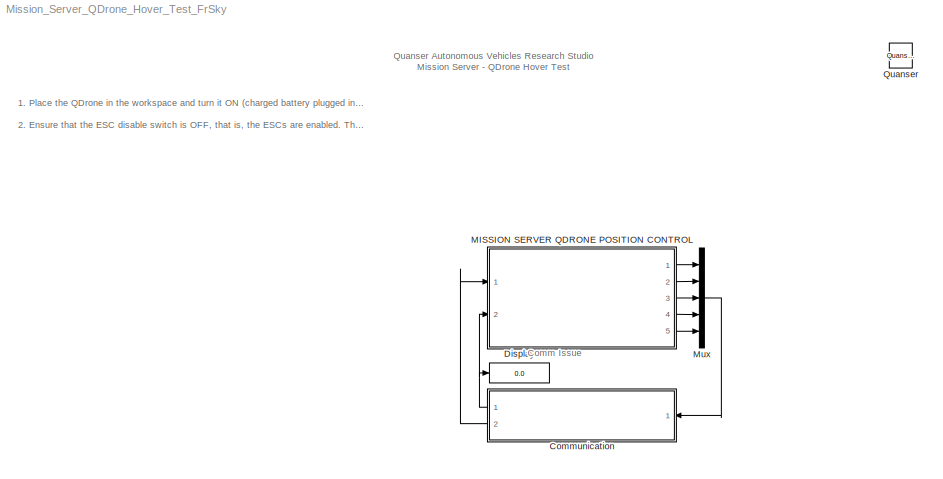
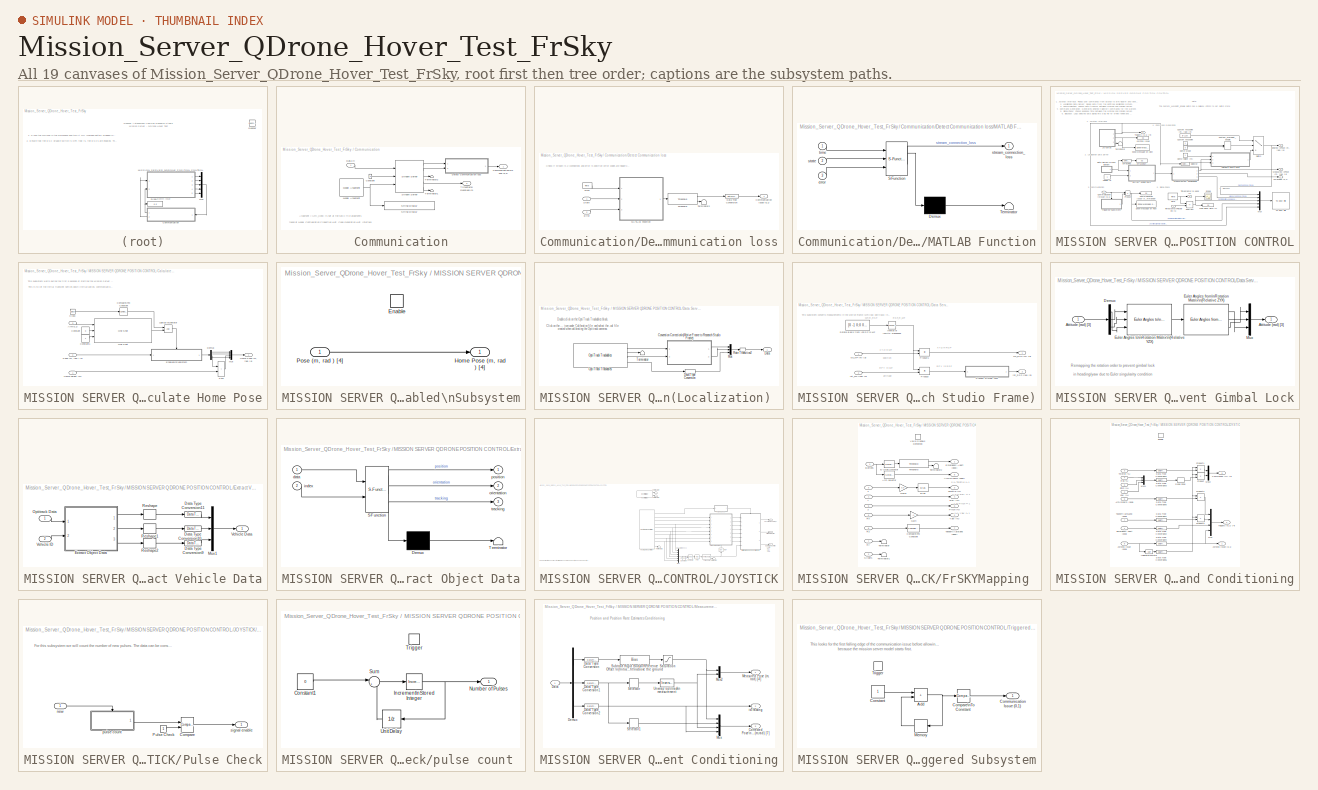
[diagram: thumbnail index - all 19 canvases of the model, root first then tree order]
MODEL Mission_Server_QDrone_Hover_Test_FrSky
KIND model
CONFIG InitFcn = set_param('Mission_Server_QDrone_Hover_Test_FrSky/MISSION SERVER QDRONE POSITION CONTROL/Custom_Waypoint_Enable', 'sw', '0' )\n
BLOCK [SubSystem] Communication
  Ports = [1, 2]
  RequestExecContextInheritance = off
  SID = 3974
BLOCK [Outport] Communication/Communication\nIssue (0,1)
  SID = 4276
  VectorParamsAs1DForOutWhenUnconnected = off
BLOCK [Constant] Communication/Constant
  SID = 3844
BLOCK [Inport] Communication/Data In
  SID = 3975
BLOCK [SubSystem] Communication/Detect Communication loss
  Ports = [2, 1]
  RequestExecContextInheritance = off
  SID = 3979
BLOCK [Outport] Communication/Detect Communication loss/Communication Issue (0,1)
  SID = 3987
  VectorParamsAs1DForOutWhenUnconnected = off
BLOCK [DataTypeConversion] Communication/Detect Communication loss/Data Type Conversion
  RndMeth = Floor
  SID = 3982
  SaturateOnIntegerOverflow = off
BLOCK [Inport] Communication/Detect Communication loss/Error
  NameLocation = top
  Port = 2
  SID = 3981
BLOCK [SubSystem] Communication/Detect Communication loss/MATLAB Function
  ErrorFcn = Stateflow.Translate.translate
  PermitHierarchicalResolution = ExplicitOnly
  Ports = [3, 1]
  RequestExecContextInheritance = off
  SFBlockType = MATLAB Function
  SID = 3983
  TreatAsAtomicUnit = on
BLOCK [Demux] Communication/Detect Communication loss/MATLAB Function/ Demux 
  Outputs = 1
  Ports = [1, 1]
  SID = 3983::98
BLOCK [S-Function] Communication/Detect Communication loss/MATLAB Function/ SFunction 
  EnableBusSupport = off
  FunctionName = sf_sfun
  PortCounts = [3 2]
  Ports = [3, 2]
  SFcnIsStateOwnerBlock = off
  SFunctionDeploymentMode = off
  SID = 3983::97
  Tag = Stateflow S-Function 3
BLOCK [Terminator] Communication/Detect Communication loss/MATLAB Function/ Terminator 
  SID = 3983::99
BLOCK [Inport] Communication/Detect Communication loss/MATLAB Function/error
  Port = 3
  SID = 3983::23
BLOCK [Inport] Communication/Detect Communication loss/MATLAB Function/state
  Port = 2
  SID = 3983::22
BLOCK [Outport] Communication/Detect Communication loss/MATLAB Function/stream_connection_loss
  SID = 3983::5
  VectorParamsAs1DForOutWhenUnconnected = off
BLOCK [Inport] Communication/Detect Communication loss/MATLAB Function/time
  SID = 3983::1
BLOCK [Inport] Communication/Detect Communication loss/State
  NameLocation = top
  SID = 3980
BLOCK [Terminator] Communication/Detect Communication loss/Terminator2
  SID = 3984
BLOCK [Reference] Communication/Detect Communication loss/Threshold  REF=quarc_library/Discontinuities/Threshold
  Ports = [1, 2]
  SID = 3985
  SourceBlock = quarc_library/Discontinuities/Threshold
  SourceProductName = QUARC Targets
  SourceType = Threshold
  duration = 0.1
  operator = >=
  param_src = Specify via dialog
  threshold = 0.5
BLOCK [Reference] Communication/Detect Communication loss/Time  REF=quarc_library/Sources/Time/Time
  MultiThreadCoSim = auto
  NameLocation = top
  Ports = [0, 1]
  SID = 3986
  SourceBlock = quarc_library/Sources/Time/Time
  SourceProductName = QUARC Targets
  SourceType = Time
  sample_time = qc_get_step_size
  time_source = Wall clock
BLOCK [Reference] Communication/Model Argument  REF=quarc_library/Sources/Signals/Model Argument
  AttributesFormatString = (-%<argument_name>)
  MultiThreadCoSim = auto
  Ports = [0, 1]
  SID = 3845
  SourceBlock = quarc_library/Sources/Signals/Model Argument
  SourceProductName = QUARC Targets
  SourceType = Model Argument
  argument_name = URI_Host
  data_type = char
  data_type_mode = Specify via dialog
  default_string = tcpip://localhost:18001
  default_value = 0
  has_value = on
  max_length = 80
  variable_size = off
BLOCK [Reference] Communication/Stream Server  REF=quarc_library/Communications/Basic/Stream Server
  MultiThreadCoSim = auto
  Ports = [3, 5]
  SID = 3861
  SourceBlock = quarc_library/Communications/Basic/Stream Server
  SourceProductName = QUARC Targets
  SourceType = Stream Server
  active = off
  apply_uri_to_all_configs = off
  byte_order = little endian (Intel - LSB first)
  data_type = Inherited via back propagation
  default_value = zeros(1,1)
  implementation = Use blocking I/O in a separate thread
  max_dimensions = -1
  optimization = Minimum latency
  receive_buffer_size = 1460
  receive_dimensions = off
  receive_fifo_size = 1000
  receive_options = Receive most recent data
  receive_priority = 0
  sample_time = qc_get_step_size
  send_buffer_size = 1460
  send_dimensions = off
  send_fifo_size = 1000
  send_options = Send most recent data
  send_priority = 0
  type_expr = BusObject
  uri = tcpip://localhost:18877
  uri_source = External input port
BLOCK [Reference] Communication/String Display   REF=quarc_library/Strings/String Display
  MultiThreadCoSim = auto
  Ports = [1]
  SID = 3862
  SourceBlock = quarc_library/Strings/String Display
  SourceProductName = QUARC Targets
  SourceType = String Display
  alignment = center
  display_mode = Single line
  sample_time = -1
  use_new = off
BLOCK [Terminator] Communication/Terminator1
  SID = 3863
BLOCK [Terminator] Communication/Terminator2
  SID = 3864
BLOCK [Outport] Communication/Timestamp Received (s)
  Port = 2
  SID = 3978
  VectorParamsAs1DForOutWhenUnconnected = off
BLOCK [Display] Display
  Decimation = 1
  Ports = [1]
  SID = 4490
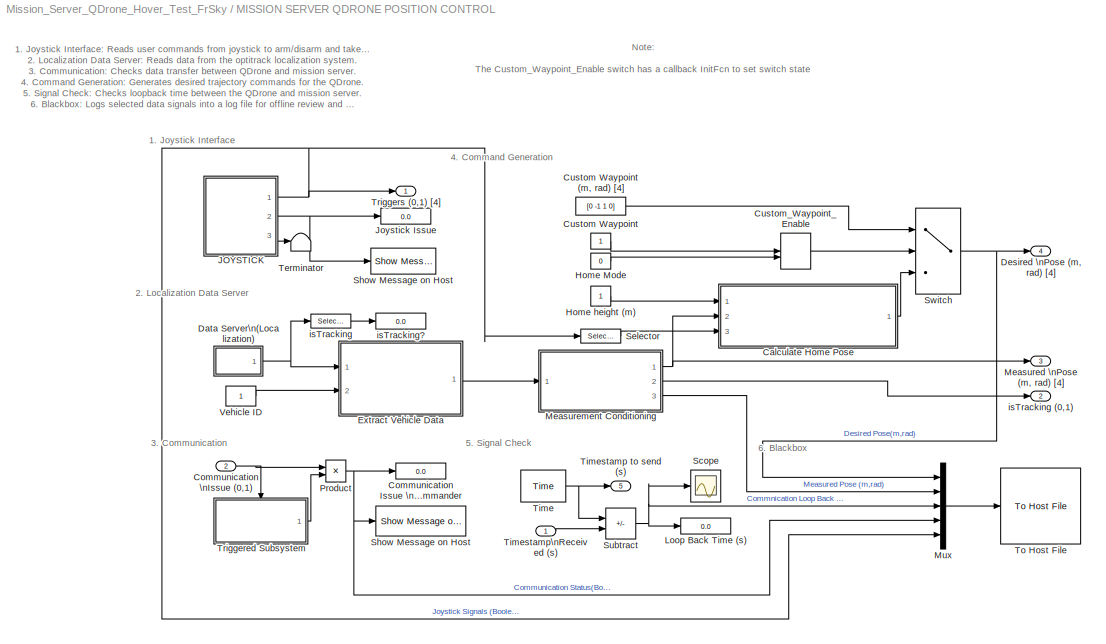
BLOCK [SubSystem] MISSION SERVER QDRONE POSITION CONTROL
  Ports = [2, 5]
  RequestExecContextInheritance = off
  SID = 4279
BLOCK [SubSystem] MISSION SERVER QDRONE POSITION CONTROL/Calculate Home Pose
  Ports = [3, 1]
  RequestExecContextInheritance = off
  SID = 4282
BLOCK [Inport] MISSION SERVER QDRONE POSITION CONTROL/Calculate Home Pose/Arm(0,1)
  Port = 3
  SID = 4285
BLOCK [Clock] MISSION SERVER QDRONE POSITION CONTROL/Calculate Home Pose/Clock
  SID = 4286
BLOCK [Reference] MISSION SERVER QDRONE POSITION CONTROL/Calculate Home Pose/Compare\nTo Constant  REF=simulink/Logic and Bit\nOperations/Compare\nTo Constant
  OutDataTypeStr = boolean
  Ports = [1, 1]
  SID = 4287
  SourceBlock = simulink/Logic and Bit\nOperations/Compare\nTo Constant
  SourceProductBaseCode = SL
  SourceType = Compare To Constant
  ZeroCross = on
  const = 5
  relop = >
BLOCK [Constant] MISSION SERVER QDRONE POSITION CONTROL/Calculate Home Pose/Constant
  SID = 4288
  Value = 0
BLOCK [Constant] MISSION SERVER QDRONE POSITION CONTROL/Calculate Home Pose/Constant1
  SID = 4289
BLOCK [Demux] MISSION SERVER QDRONE POSITION CONTROL/Calculate Home Pose/Demux
  Ports = [1, 4]
  SID = 4290
BLOCK [SubSystem] MISSION SERVER QDRONE POSITION CONTROL/Calculate Home Pose/Enabled\nSubsystem
  Ports = [1, 1, 1]
  RequestExecContextInheritance = off
  SID = 4706
  TreatAsAtomicUnit = on
BLOCK [EnablePort] MISSION SERVER QDRONE POSITION CONTROL/Calculate Home Pose/Enabled\nSubsystem/Enable
  Ports = []
  SID = 4708
BLOCK [Outport] MISSION SERVER QDRONE POSITION CONTROL/Calculate Home Pose/Enabled\nSubsystem/Home Pose (m, rad ) [4]
  SID = 4709
  VectorParamsAs1DForOutWhenUnconnected = off
BLOCK [Inport] MISSION SERVER QDRONE POSITION CONTROL/Calculate Home Pose/Enabled\nSubsystem/Pose (m, rad ) [4] 
  SID = 4707
BLOCK [Outport] MISSION SERVER QDRONE POSITION CONTROL/Calculate Home Pose/Home Pose (m, rad) [4]
  SID = 4296
  VectorParamsAs1DForOutWhenUnconnected = off
BLOCK [Inport] MISSION SERVER QDRONE POSITION CONTROL/Calculate Home Pose/Home height (m)
  SID = 4283
BLOCK [Logic] MISSION SERVER QDRONE POSITION CONTROL/Calculate Home Pose/Logical\nOperator
  AllPortsSameDT = off
  OutDataTypeStr = boolean
  Ports = [2, 1]
  SID = 4292
BLOCK [Mux] MISSION SERVER QDRONE POSITION CONTROL/Calculate Home Pose/Mux
  DisplayOption = bar
  Ports = [4, 1]
  SID = 4293
BLOCK [Reference] MISSION SERVER QDRONE POSITION CONTROL/Calculate Home Pose/One Shot  REF=quarc_library/Discontinuities/One Shot
  Ports = [3, 1]
  SID = 4294
  SourceBlock = quarc_library/Discontinuities/One Shot
  SourceProductName = QUARC Targets
  SourceType = One Shot
  pulse_width = 1/qc_get_step_size
  redun_pulse = Ignore extraneous pulse
  trigger_type = Rising edge
  width_source = Specify via dialog
BLOCK [Inport] MISSION SERVER QDRONE POSITION CONTROL/Calculate Home Pose/Pose (m, rad ) [4]
  Port = 2
  SID = 4284
BLOCK [Sum] MISSION SERVER QDRONE POSITION CONTROL/Calculate Home Pose/Sum
  IconShape = rectangular
  Ports = [2, 1]
  SID = 4295
BLOCK [Display] MISSION SERVER QDRONE POSITION CONTROL/Communication Issue \nwith Commander
  Decimation = 1
  Ports = [1]
  SID = 4298
BLOCK [Inport] MISSION SERVER QDRONE POSITION CONTROL/Communication \nIssue (0,1)
  Port = 2
  SID = 4281
BLOCK [Constant] MISSION SERVER QDRONE POSITION CONTROL/Custom Waypoint
  NameLocation = top
  SID = 4712
BLOCK [Constant] MISSION SERVER QDRONE POSITION CONTROL/Custom Waypoint (m, rad) [4]
  NameLocation = top
  SID = 4704
  Value = [0 -1 1 0]
BLOCK [ManualSwitch] MISSION SERVER QDRONE POSITION CONTROL/Custom_Waypoint_Enable
  CurrentSetting = 0
  SID = 4711
BLOCK [SubSystem] MISSION SERVER QDRONE POSITION CONTROL/Data Server\n(Localization) 
  NameLocation = top
  Ports = [0, 1]
  RequestExecContextInheritance = off
  SID = 4299
BLOCK [SubSystem] MISSION SERVER QDRONE POSITION CONTROL/Data Server\n(Localization) /Convention Correction\n(Motive Frame to Research Studio Frame)
  NameLocation = top
  Ports = [2, 2]
  RequestExecContextInheritance = off
  SID = 4300
BLOCK [Math] MISSION SERVER QDRONE POSITION CONTROL/Data Server\n(Localization) /Convention Correction\n(Motive Frame to Research Studio Frame)/Inverse of \nOrthonormal \nMatrix\nis its \nTranspose
  Operator = transpose
  Ports = [1, 1]
  SID = 4303
  SignedPower = on
BLOCK [SubSystem] MISSION SERVER QDRONE POSITION CONTROL/Data Server\n(Localization) /Convention Correction\n(Motive Frame to Research Studio Frame)/Prevent Gimbal Lock
  Ports = [1, 1]
  RequestExecContextInheritance = off
  SID = 4304
BLOCK [Inport] MISSION SERVER QDRONE POSITION CONTROL/Data Server\n(Localization) /Convention Correction\n(Motive Frame to Research Studio Frame)/Prevent Gimbal Lock/Attitude (rad) [3]
  SID = 4305
BLOCK [Outport] MISSION SERVER QDRONE POSITION CONTROL/Data Server\n(Localization) /Convention Correction\n(Motive Frame to Research Studio Frame)/Prevent Gimbal Lock/Attitude (rad) [3] 
  SID = 4310
  VectorParamsAs1DForOutWhenUnconnected = off
BLOCK [Demux] MISSION SERVER QDRONE POSITION CONTROL/Data Server\n(Localization) /Convention Correction\n(Motive Frame to Research Studio Frame)/Prevent Gimbal Lock/Demux
  Outputs = 3
  Ports = [1, 3]
  SID = 4306
BLOCK [Reference] MISSION SERVER QDRONE POSITION CONTROL/Data Server\n(Localization) /Convention Correction\n(Motive Frame to Research Studio Frame)/Prevent Gimbal Lock/Euler Angles from\nRotation Matrix\n(Relative ZYX)  REF=quarc_library/Math Operations/Matrices/Euler Angles from\nRotation Matrix
  MultiThreadCoSim = auto
  Ports = [1, 3]
  SID = 4307
  SourceBlock = quarc_library/Math Operations/Matrices/Euler Angles from\nRotation Matrix
  SourceProductName = QUARC Targets
  SourceType = Euler Angles from Rotation Matrix
  menu_order = Relative Z-Y-X
BLOCK [Reference] MISSION SERVER QDRONE POSITION CONTROL/Data Server\n(Localization) /Convention Correction\n(Motive Frame to Research Studio Frame)/Prevent Gimbal Lock/Euler Angles to\nRotation Matrix\n(Relative YZX)  REF=quarc_library/Math Operations/Matrices/Euler Angles to\nRotation Matrix
  MultiThreadCoSim = auto
  Ports = [3, 1]
  SID = 4308
  SourceBlock = quarc_library/Math Operations/Matrices/Euler Angles to\nRotation Matrix
  SourceProductName = QUARC Targets
  SourceType = Euler Angles to Rotation Matrix
  menu_order = Relative Y-Z-X
BLOCK [Mux] MISSION SERVER QDRONE POSITION CONTROL/Data Server\n(Localization) /Convention Correction\n(Motive Frame to Research Studio Frame)/Prevent Gimbal Lock/Mux
  DisplayOption = bar
  Inputs = 3
  Ports = [3, 1]
  SID = 4309
BLOCK [Product] MISSION SERVER QDRONE POSITION CONTROL/Data Server\n(Localization) /Convention Correction\n(Motive Frame to Research Studio Frame)/Product
  Multiplication = Matrix(*)
  Ports = [2, 1]
  SID = 4312
BLOCK [Product] MISSION SERVER QDRONE POSITION CONTROL/Data Server\n(Localization) /Convention Correction\n(Motive Frame to Research Studio Frame)/Product1
  Multiplication = Matrix(*)
  Ports = [2, 1]
  SID = 4313
BLOCK [Constant] MISSION SERVER QDRONE POSITION CONTROL/Data Server\n(Localization) /Convention Correction\n(Motive Frame to Research Studio Frame)/Rotate Basis from \nRSF to MF
  SID = 4314
  Value = [0 -1 0;0 0 1;-1 0 0]
BLOCK [Inport] MISSION SERVER QDRONE POSITION CONTROL/Data Server\n(Localization) /Convention Correction\n(Motive Frame to Research Studio Frame)/rot_MF (rad) [3]
  Port = 2
  SID = 4302
BLOCK [Outport] MISSION SERVER QDRONE POSITION CONTROL/Data Server\n(Localization) /Convention Correction\n(Motive Frame to Research Studio Frame)/rot_RSF (rad) [3]
  Port = 2
  SID = 4316
  VectorParamsAs1DForOutWhenUnconnected = off
BLOCK [Inport] MISSION SERVER QDRONE POSITION CONTROL/Data Server\n(Localization) /Convention Correction\n(Motive Frame to Research Studio Frame)/xyz_MF (m) [3]
  SID = 4301
BLOCK [Outport] MISSION SERVER QDRONE POSITION CONTROL/Data Server\n(Localization) /Convention Correction\n(Motive Frame to Research Studio Frame)/xyz_RSF (m) [3]
  SID = 4315
  VectorParamsAs1DForOutWhenUnconnected = off
BLOCK [Outport] MISSION SERVER QDRONE POSITION CONTROL/Data Server\n(Localization) /Data
  SID = 4330
  VectorParamsAs1DForOutWhenUnconnected = off
BLOCK [DataTypeConversion] MISSION SERVER QDRONE POSITION CONTROL/Data Server\n(Localization) /Data Type Conversion
  RndMeth = Floor
  SID = 4326
  SaturateOnIntegerOverflow = off
BLOCK [Mux] MISSION SERVER QDRONE POSITION CONTROL/Data Server\n(Localization) /Mux
  DisplayOption = bar
  Inputs = 3
  Ports = [3, 1]
  SID = 4327
BLOCK [Reference] MISSION SERVER QDRONE POSITION CONTROL/Data Server\n(Localization) /OptiTrack Trackables  REF=quarc_library/Devices/Third-Party/NaturalPoint/OptiTrack/OptiTrack Trackables
  MultiThreadCoSim = auto
  Ports = [0, 4]
  SID = 4328
  SourceBlock = quarc_library/Devices/Third-Party/NaturalPoint/OptiTrack/OptiTrack Trackables
  SourceProductName = QUARC Targets
  SourceType = OptiTrack Rigid Body Position
  active = off
  calibration_file = <userpath><path> mm) 2019-08-26 1.47pm.cal
  rigid_body_file = <userpath><path>
  rigid_body_ids = [1]
  sample_time = qc_get_step_size*10
BLOCK [RateTransition] MISSION SERVER QDRONE POSITION CONTROL/Data Server\n(Localization) /Rate Transition2
  SID = 4494
BLOCK [Terminator] MISSION SERVER QDRONE POSITION CONTROL/Data Server\n(Localization) /Terminator
  SID = 4329
BLOCK [Outport] MISSION SERVER QDRONE POSITION CONTROL/Desired \nPose (m, rad) [4]
  NameLocation = top
  Port = 4
  SID = 4480
  VectorParamsAs1DForOutWhenUnconnected = off
BLOCK [SubSystem] MISSION SERVER QDRONE POSITION CONTROL/Extract Vehicle Data
  Ports = [2, 1]
  RequestExecContextInheritance = off
  SID = 4333
BLOCK [DataTypeConversion] MISSION SERVER QDRONE POSITION CONTROL/Extract Vehicle Data/Data Type Conversion10
  RndMeth = Floor
  SID = 4336
  SaturateOnIntegerOverflow = off
BLOCK [DataTypeConversion] MISSION SERVER QDRONE POSITION CONTROL/Extract Vehicle Data/Data Type Conversion11
  RndMeth = Floor
  SID = 4337
  SaturateOnIntegerOverflow = off
BLOCK [DataTypeConversion] MISSION SERVER QDRONE POSITION CONTROL/Extract Vehicle Data/Data Type Conversion9
  RndMeth = Floor
  SID = 4338
  SaturateOnIntegerOverflow = off
BLOCK [SubSystem] MISSION SERVER QDRONE POSITION CONTROL/Extract Vehicle Data/Extract Object Data
  ErrorFcn = Stateflow.Translate.translate
  PermitHierarchicalResolution = ExplicitOnly
  Ports = [2, 3]
  RequestExecContextInheritance = off
  SFBlockType = MATLAB Function
  SID = 4339
  TreatAsAtomicUnit = on
BLOCK [Demux] MISSION SERVER QDRONE POSITION CONTROL/Extract Vehicle Data/Extract Object Data/ Demux 
  Outputs = 1
  Ports = [1, 1]
  SID = 4339::95
BLOCK [S-Function] MISSION SERVER QDRONE POSITION CONTROL/Extract Vehicle Data/Extract Object Data/ SFunction 
  EnableBusSupport = off
  FunctionName = sf_sfun
  PortCounts = [2 4]
  Ports = [2, 4]
  SFcnIsStateOwnerBlock = off
  SFunctionDeploymentMode = off
  SID = 4339::94
  Tag = Stateflow S-Function 2
BLOCK [Terminator] MISSION SERVER QDRONE POSITION CONTROL/Extract Vehicle Data/Extract Object Data/ Terminator 
  SID = 4339::96
BLOCK [Inport] MISSION SERVER QDRONE POSITION CONTROL/Extract Vehicle Data/Extract Object Data/data
  SID = 4339::1
BLOCK [Inport] MISSION SERVER QDRONE POSITION CONTROL/Extract Vehicle Data/Extract Object Data/index
  Port = 2
  SID = 4339::19
BLOCK [Outport] MISSION SERVER QDRONE POSITION CONTROL/Extract Vehicle Data/Extract Object Data/orientation
  Port = 2
  SID = 4339::21
  VectorParamsAs1DForOutWhenUnconnected = off
BLOCK [Outport] MISSION SERVER QDRONE POSITION CONTROL/Extract Vehicle Data/Extract Object Data/position
  SID = 4339::5
  VectorParamsAs1DForOutWhenUnconnected = off
BLOCK [Outport] MISSION SERVER QDRONE POSITION CONTROL/Extract Vehicle Data/Extract Object Data/tracking
  Port = 3
  SID = 4339::20
  VectorParamsAs1DForOutWhenUnconnected = off
BLOCK [Mux] MISSION SERVER QDRONE POSITION CONTROL/Extract Vehicle Data/Mux1
  DisplayOption = bar
  Inputs = 3
  Ports = [3, 1]
  SID = 4340
BLOCK [Inport] MISSION SERVER QDRONE POSITION CONTROL/Extract Vehicle Data/Optitrack Data
  SID = 4334
BLOCK [Reshape] MISSION SERVER QDRONE POSITION CONTROL/Extract Vehicle Data/Reshape
  Ports = [1, 1]
  SID = 4341
BLOCK [Reshape] MISSION SERVER QDRONE POSITION CONTROL/Extract Vehicle Data/Reshape1
  Ports = [1, 1]
  SID = 4342
BLOCK [Reshape] MISSION SERVER QDRONE POSITION CONTROL/Extract Vehicle Data/Reshape2
  Ports = [1, 1]
  SID = 4343
BLOCK [Outport] MISSION SERVER QDRONE POSITION CONTROL/Extract Vehicle Data/Vehicle Data
  SID = 4344
  VectorParamsAs1DForOutWhenUnconnected = off
BLOCK [Inport] MISSION SERVER QDRONE POSITION CONTROL/Extract Vehicle Data/Vehicle ID
  Port = 2
  SID = 4335
BLOCK [Constant] MISSION SERVER QDRONE POSITION CONTROL/Home Mode
  SID = 4345
  Value = 0
BLOCK [Constant] MISSION SERVER QDRONE POSITION CONTROL/Home height (m)
  SID = 4346
BLOCK [SubSystem] MISSION SERVER QDRONE POSITION CONTROL/JOYSTICK
  Ports = [0, 3]
  RequestExecContextInheritance = off
  SID = 4347
BLOCK [Logic] MISSION SERVER QDRONE POSITION CONTROL/JOYSTICK/AND
  AllPortsSameDT = off
  Inputs = 1
  OutDataTypeStr = boolean
  Ports = [1, 1]
  SID = 4959
BLOCK [Outport] MISSION SERVER QDRONE POSITION CONTROL/JOYSTICK/Commands (%) [4]
  Port = 3
  SID = 4434
  VectorParamsAs1DForOutWhenUnconnected = off
BLOCK [Reference] MISSION SERVER QDRONE POSITION CONTROL/JOYSTICK/Compare  REF=quarc_library/Logic Operations/Compare
  MultiThreadCoSim = auto
  Ports = [2, 1]
  SID = 4960
  SourceBlock = quarc_library/Logic Operations/Compare
  SourceProductName = QUARC Targets
  SourceType = Compare
  operator = ==
  output_data_type = boolean
BLOCK [Constant] MISSION SERVER QDRONE POSITION CONTROL/JOYSTICK/Constant
  SID = 4961
  Value = -1*ones(1,6)
BLOCK [SubSystem] MISSION SERVER QDRONE POSITION CONTROL/JOYSTICK/FrSKYMapping 
  NameLocation = top
  Ports = [8, 7, 1]
  RequestExecContextInheritance = off
  SID = 4962
BLOCK [Selector] MISSION SERVER QDRONE POSITION CONTROL/JOYSTICK/FrSKYMapping /Arm selector
  IndexOptions = Index vector (dialog)
  Indices = [2]
  InputPortWidth = 32
  OutputSizes = 1
  Ports = [1, 1]
  SID = 4972
BLOCK [Outport] MISSION SERVER QDRONE POSITION CONTROL/JOYSTICK/FrSKYMapping /Arm//Disarm (bool) 
  Port = 6
  SID = 4987
  VectorParamsAs1DForOutWhenUnconnected = off
BLOCK [Bias] MISSION SERVER QDRONE POSITION CONTROL/JOYSTICK/FrSKYMapping /Bias
  Bias = 0.5
  SID = 4973
  SaturateOnIntegerOverflow = off
BLOCK [Inport] MISSION SERVER QDRONE POSITION CONTROL/JOYSTICK/FrSKYMapping /Buttons
  SID = 4963
BLOCK [Reference] MISSION SERVER QDRONE POSITION CONTROL/JOYSTICK/FrSKYMapping /Compare\nTo Constant  REF=simulink/Logic and Bit\nOperations/Compare\nTo Constant
  OutDataTypeStr = boolean
  Ports = [1, 1]
  SID = 4974
  SourceBlock = simulink/Logic and Bit\nOperations/Compare\nTo Constant
  SourceProductBaseCode = SL
  SourceType = Compare To Constant
  ZeroCross = on
  const = -0.5
  relop = >=
BLOCK [Selector] MISSION SERVER QDRONE POSITION CONTROL/JOYSTICK/FrSKYMapping /E-Stop Selector
  IndexOptions = Index vector (dialog)
  Indices = [1]
  InputPortWidth = 32
  NameLocation = top
  OutputSizes = 1
  Ports = [1, 1]
  SID = 4975
BLOCK [Outport] MISSION SERVER QDRONE POSITION CONTROL/JOYSTICK/FrSKYMapping /Emergency Abort (bool)
  SID = 4982
  VectorParamsAs1DForOutWhenUnconnected = off
BLOCK [Gain] MISSION SERVER QDRONE POSITION CONTROL/JOYSTICK/FrSKYMapping /Gain
  Gain = -1
  SID = 4976
BLOCK [Gain] MISSION SERVER QDRONE POSITION CONTROL/JOYSTICK/FrSKYMapping /Gain1
  Gain = 0.5
  SID = 4977
BLOCK [Outport] MISSION SERVER QDRONE POSITION CONTROL/JOYSTICK/FrSKYMapping /Pitch (%)
  Port = 5
  SID = 4986
  VectorParamsAs1DForOutWhenUnconnected = off
BLOCK [Outport] MISSION SERVER QDRONE POSITION CONTROL/JOYSTICK/FrSKYMapping /Roll (%)
  Port = 4
  SID = 4985
  VectorParamsAs1DForOutWhenUnconnected = off
BLOCK [Inport] MISSION SERVER QDRONE POSITION CONTROL/JOYSTICK/FrSKYMapping /Rx
  Port = 6
  SID = 4968
BLOCK [Inport] MISSION SERVER QDRONE POSITION CONTROL/JOYSTICK/FrSKYMapping /Ry
  Port = 7
  SID = 4969
BLOCK [Inport] MISSION SERVER QDRONE POSITION CONTROL/JOYSTICK/FrSKYMapping /Rz
  Port = 8
  SID = 4970
BLOCK [Inport] MISSION SERVER QDRONE POSITION CONTROL/JOYSTICK/FrSKYMapping /Sliders
  Port = 2
  SID = 4964
BLOCK [Outport] MISSION SERVER QDRONE POSITION CONTROL/JOYSTICK/FrSKYMapping /Takeoff//Autoland (bool)
  Port = 7
  SID = 4988
  VectorParamsAs1DForOutWhenUnconnected = off
BLOCK [Terminator] MISSION SERVER QDRONE POSITION CONTROL/JOYSTICK/FrSKYMapping /Terminator
  SID = 4978
BLOCK [Terminator] MISSION SERVER QDRONE POSITION CONTROL/JOYSTICK/FrSKYMapping /Terminator1
  SID = 4979
BLOCK [Terminator] MISSION SERVER QDRONE POSITION CONTROL/JOYSTICK/FrSKYMapping /Terminator2
  SID = 4980
BLOCK [Reference] MISSION SERVER QDRONE POSITION CONTROL/JOYSTICK/FrSKYMapping /Threshold  REF=quarc_library/Discontinuities/Threshold
  Ports = [1, 2]
  SID = 4981
  SourceBlock = quarc_library/Discontinuities/Threshold
  SourceProductName = QUARC Targets
  SourceType = Threshold
  duration = 0.2
  operator = >=
  param_src = Specify via dialog
  threshold = 0.5
BLOCK [Outport] MISSION SERVER QDRONE POSITION CONTROL/JOYSTICK/FrSKYMapping /Throttle (%)
  Port = 3
  SID = 4984
  VectorParamsAs1DForOutWhenUnconnected = off
BLOCK [EnablePort] MISSION SERVER QDRONE POSITION CONTROL/JOYSTICK/FrSKYMapping /Valid Signals Detected
  Ports = []
  SID = 4971
BLOCK [Outport] MISSION SERVER QDRONE POSITION CONTROL/JOYSTICK/FrSKYMapping /Yaw (%)
  Port = 2
  SID = 4983
  VectorParamsAs1DForOutWhenUnconnected = off
BLOCK [Inport] MISSION SERVER QDRONE POSITION CONTROL/JOYSTICK/FrSKYMapping /x
  Port = 3
  SID = 4965
BLOCK [Inport] MISSION SERVER QDRONE POSITION CONTROL/JOYSTICK/FrSKYMapping /y
  Port = 4
  SID = 4966
BLOCK [Inport] MISSION SERVER QDRONE POSITION CONTROL/JOYSTICK/FrSKYMapping /z
  Port = 5
  SID = 4967
BLOCK [Reference] MISSION SERVER QDRONE POSITION CONTROL/JOYSTICK/Host Game Controller  REF=quarc_library/Devices/Peripherals/Host/Host Game Controller
  MultiThreadCoSim = auto
  Ports = [0, 10]
  SID = 4350
  SourceBlock = quarc_library/Devices/Peripherals/Host/Host Game Controller
  SourceProductName = QUARC Targets
  SourceType = Host Game Controller
  auto_center = off
  buffer_size = 20
  controller = 1
  deadzone = []
  debug_mode = off
  enabled = on
  object_name = Host-1
  sample_time = qc_get_step_size
  saturation = []
BLOCK [Reference] MISSION SERVER QDRONE POSITION CONTROL/JOYSTICK/Host Initialize  REF=quarc_library/Devices/Peripherals/Host/Host Initialize
  MultiThreadCoSim = auto
  Ports = [0, 2]
  SID = 4351
  SourceBlock = quarc_library/Devices/Peripherals/Host/Host Initialize
  SourceProductName = QUARC Targets
  SourceType = Host Initialize
  active = on
  apply_uri_to_all_configs = on
  object_name = Host-1
  receive_buffer_size = 1000
  run_client = on
  sample_time = qc_get_step_size
  send_buffer_size = 1000
  thread_priority = 0
  uri = tcpip://localhost:18001
  uri_source = Use external mode communications
  use_window = off
  window_position = []
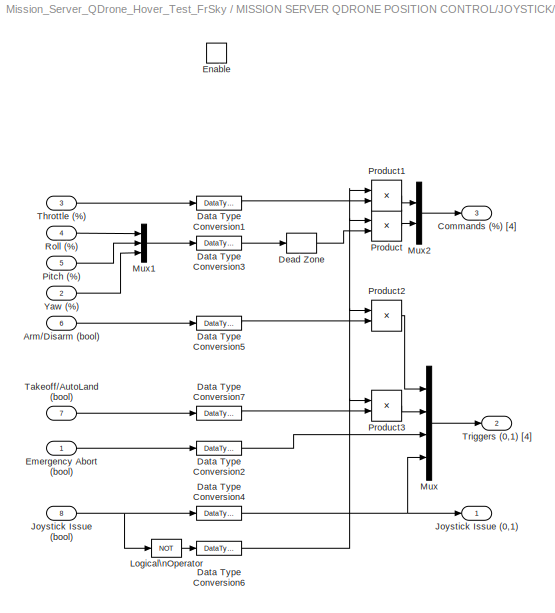
BLOCK [SubSystem] MISSION SERVER QDRONE POSITION CONTROL/JOYSTICK/Initialization\nand Conditioning
  Ports = [8, 3, 1]
  RequestExecContextInheritance = off
  SID = 4993
  TreatAsAtomicUnit = on
BLOCK [Inport] MISSION SERVER QDRONE POSITION CONTROL/JOYSTICK/Initialization\nand Conditioning/Arm//Disarm (bool)
  Port = 6
  SID = 4999
BLOCK [Outport] MISSION SERVER QDRONE POSITION CONTROL/JOYSTICK/Initialization\nand Conditioning/Commands (%) [4]
  InitialOutput = 0
  NameLocation = top
  Port = 3
  SID = 5021
  VectorParamsAs1DForOutWhenUnconnected = off
BLOCK [DataTypeConversion] MISSION SERVER QDRONE POSITION CONTROL/JOYSTICK/Initialization\nand Conditioning/Data Type Conversion1
  RndMeth = Floor
  SID = 5003
  SaturateOnIntegerOverflow = off
BLOCK [DataTypeConversion] MISSION SERVER QDRONE POSITION CONTROL/JOYSTICK/Initialization\nand Conditioning/Data Type Conversion2
  RndMeth = Floor
  SID = 5004
  SaturateOnIntegerOverflow = off
BLOCK [DataTypeConversion] MISSION SERVER QDRONE POSITION CONTROL/JOYSTICK/Initialization\nand Conditioning/Data Type Conversion3
  RndMeth = Floor
  SID = 5005
  SaturateOnIntegerOverflow = off
BLOCK [DataTypeConversion] MISSION SERVER QDRONE POSITION CONTROL/JOYSTICK/Initialization\nand Conditioning/Data Type Conversion4
  RndMeth = Floor
  SID = 5006
  SaturateOnIntegerOverflow = off
BLOCK [DataTypeConversion] MISSION SERVER QDRONE POSITION CONTROL/JOYSTICK/Initialization\nand Conditioning/Data Type Conversion5
  RndMeth = Floor
  SID = 5007
  SaturateOnIntegerOverflow = off
BLOCK [DataTypeConversion] MISSION SERVER QDRONE POSITION CONTROL/JOYSTICK/Initialization\nand Conditioning/Data Type Conversion6
  RndMeth = Floor
  SID = 5008
  SaturateOnIntegerOverflow = off
BLOCK [DataTypeConversion] MISSION SERVER QDRONE POSITION CONTROL/JOYSTICK/Initialization\nand Conditioning/Data Type Conversion7
  RndMeth = Floor
  SID = 5009
  SaturateOnIntegerOverflow = off
BLOCK [DeadZone] MISSION SERVER QDRONE POSITION CONTROL/JOYSTICK/Initialization\nand Conditioning/Dead Zone
  LowerValue = -0.01
  SID = 5010
  UpperValue = 0.01
BLOCK [Inport] MISSION SERVER QDRONE POSITION CONTROL/JOYSTICK/Initialization\nand Conditioning/Emergency Abort (bool)
  SID = 4994
BLOCK [EnablePort] MISSION SERVER QDRONE POSITION CONTROL/JOYSTICK/Initialization\nand Conditioning/Enable
  Ports = []
  SID = 5002
  StatesWhenEnabling = reset
BLOCK [Outport] MISSION SERVER QDRONE POSITION CONTROL/JOYSTICK/Initialization\nand Conditioning/Joystick Issue (0,1)
  InitialOutput = 0
  NameLocation = top
  SID = 5019
  VectorParamsAs1DForOutWhenUnconnected = off
BLOCK [Inport] MISSION SERVER QDRONE POSITION CONTROL/JOYSTICK/Initialization\nand Conditioning/Joystick Issue (bool)
  Port = 8
  SID = 5001
BLOCK [Logic] MISSION SERVER QDRONE POSITION CONTROL/JOYSTICK/Initialization\nand Conditioning/Logical\nOperator
  AllPortsSameDT = off
  Operator = NOT
  OutDataTypeStr = boolean
  Ports = [1, 1]
  SID = 5011
BLOCK [Mux] MISSION SERVER QDRONE POSITION CONTROL/JOYSTICK/Initialization\nand Conditioning/Mux
  DisplayOption = bar
  Ports = [4, 1]
  SID = 5012
BLOCK [Mux] MISSION SERVER QDRONE POSITION CONTROL/JOYSTICK/Initialization\nand Conditioning/Mux1
  DisplayOption = bar
  Inputs = 3
  Ports = [3, 1]
  SID = 5013
BLOCK [Mux] MISSION SERVER QDRONE POSITION CONTROL/JOYSTICK/Initialization\nand Conditioning/Mux2
  DisplayOption = bar
  Inputs = 2
  Ports = [2, 1]
  SID = 5014
BLOCK [Inport] MISSION SERVER QDRONE POSITION CONTROL/JOYSTICK/Initialization\nand Conditioning/Pitch (%)
  Port = 5
  SID = 4998
BLOCK [Product] MISSION SERVER QDRONE POSITION CONTROL/JOYSTICK/Initialization\nand Conditioning/Product
  Ports = [2, 1]
  SID = 5015
BLOCK [Product] MISSION SERVER QDRONE POSITION CONTROL/JOYSTICK/Initialization\nand Conditioning/Product1
  Ports = [2, 1]
  SID = 5016
BLOCK [Product] MISSION SERVER QDRONE POSITION CONTROL/JOYSTICK/Initialization\nand Conditioning/Product2
  Ports = [2, 1]
  SID = 5017
BLOCK [Product] MISSION SERVER QDRONE POSITION CONTROL/JOYSTICK/Initialization\nand Conditioning/Product3
  Ports = [2, 1]
  SID = 5018
BLOCK [Inport] MISSION SERVER QDRONE POSITION CONTROL/JOYSTICK/Initialization\nand Conditioning/Roll (%)
  Port = 4
  SID = 4997
BLOCK [Inport] MISSION SERVER QDRONE POSITION CONTROL/JOYSTICK/Initialization\nand Conditioning/Takeoff//AutoLand (bool)
  Port = 7
  SID = 5000
BLOCK [Inport] MISSION SERVER QDRONE POSITION CONTROL/JOYSTICK/Initialization\nand Conditioning/Throttle (%)
  Port = 3
  SID = 4996
BLOCK [Outport] MISSION SERVER QDRONE POSITION CONTROL/JOYSTICK/Initialization\nand Conditioning/Triggers (0,1) [4]
  InitialOutput = 0
  NameLocation = top
  Port = 2
  SID = 5020
  VectorParamsAs1DForOutWhenUnconnected = off
BLOCK [Inport] MISSION SERVER QDRONE POSITION CONTROL/JOYSTICK/Initialization\nand Conditioning/Yaw (%)
  Port = 2
  SID = 4995
BLOCK [Outport] MISSION SERVER QDRONE POSITION CONTROL/JOYSTICK/Joystick Issue (0,1)
  Port = 2
  SID = 4433
  VectorParamsAs1DForOutWhenUnconnected = off
BLOCK [Mux] MISSION SERVER QDRONE POSITION CONTROL/JOYSTICK/Mux
  DisplayOption = bar
  Inputs = 6
  Ports = [6, 1]
  SID = 5022
BLOCK [Logic] MISSION SERVER QDRONE POSITION CONTROL/JOYSTICK/NOT
  AllPortsSameDT = off
  IconShape = distinctive
  NameLocation = right
  Operator = NOT
  OutDataTypeStr = boolean
  Ports = [1, 1]
  SID = 5023
BLOCK [SubSystem] MISSION SERVER QDRONE POSITION CONTROL/JOYSTICK/Pulse Check
  NameLocation = top
  Ports = [1, 1]
  RequestExecContextInheritance = off
  SID = 5024
  TreatAsAtomicUnit = on
BLOCK [Reference] MISSION SERVER QDRONE POSITION CONTROL/JOYSTICK/Pulse Check/Compare  REF=quarc_library/Logic Operations/Compare
  MultiThreadCoSim = auto
  Ports = [2, 1]
  SID = 5026
  SourceBlock = quarc_library/Logic Operations/Compare
  SourceProductName = QUARC Targets
  SourceType = Compare
  operator = >=
  output_data_type = boolean
BLOCK [Constant] MISSION SERVER QDRONE POSITION CONTROL/JOYSTICK/Pulse Check/Pulse Check
  SID = 5027
BLOCK [Inport] MISSION SERVER QDRONE POSITION CONTROL/JOYSTICK/Pulse Check/new
  SID = 5025
BLOCK [SubSystem] MISSION SERVER QDRONE POSITION CONTROL/JOYSTICK/Pulse Check/pulse count 
  Ports = [0, 1, 0, 1]
  RequestExecContextInheritance = off
  SID = 5028
  TreatAsAtomicUnit = on
BLOCK [Constant] MISSION SERVER QDRONE POSITION CONTROL/JOYSTICK/Pulse Check/pulse count /Constant1
  SID = 5030
  Value = 0
BLOCK [Reference] MISSION SERVER QDRONE POSITION CONTROL/JOYSTICK/Pulse Check/pulse count /Increment\nStored Integer  REF=simulink/Additional Math\n& Discrete/Additional Math:\nIncrement - Decrement/Increment\nStored Integer
  Ports = [1, 1]
  SID = 5031
  SourceBlock = simulink/Additional Math\n& Discrete/Additional Math:\nIncrement - Decrement/Increment\nStored Integer
  SourceProductBaseCode = SL
  SourceType = Stored Integer Value Increment
BLOCK [Outport] MISSION SERVER QDRONE POSITION CONTROL/JOYSTICK/Pulse Check/pulse count /Number of Pulses
  SID = 5034
  VectorParamsAs1DForOutWhenUnconnected = off
BLOCK [Sum] MISSION SERVER QDRONE POSITION CONTROL/JOYSTICK/Pulse Check/pulse count /Sum
  Inputs = |++
  Ports = [2, 1]
  SID = 5032
BLOCK [TriggerPort] MISSION SERVER QDRONE POSITION CONTROL/JOYSTICK/Pulse Check/pulse count /Trigger
  Ports = []
  SID = 5029
  StatesWhenEnabling = held
  TriggerType = either
  VariantControl = Variant
BLOCK [UnitDelay] MISSION SERVER QDRONE POSITION CONTROL/JOYSTICK/Pulse Check/pulse count /Unit Delay
  HasFrameUpgradeWarning = on
  NameLocation = top
  SID = 5033
  SampleTime = -1
BLOCK [Outport] MISSION SERVER QDRONE POSITION CONTROL/JOYSTICK/Pulse Check/signal enable
  InitialOutput = 0
  SID = 5035
  VectorParamsAs1DForOutWhenUnconnected = off
BLOCK [Terminator] MISSION SERVER QDRONE POSITION CONTROL/JOYSTICK/Terminator
  SID = 5037
BLOCK [Terminator] MISSION SERVER QDRONE POSITION CONTROL/JOYSTICK/Terminator1
  SID = 4428
BLOCK [Terminator] MISSION SERVER QDRONE POSITION CONTROL/JOYSTICK/Terminator2
  SID = 5041
BLOCK [Terminator] MISSION SERVER QDRONE POSITION CONTROL/JOYSTICK/Terminator4
  SID = 4431
BLOCK [Reference] MISSION SERVER QDRONE POSITION CONTROL/JOYSTICK/Threshold  REF=quarc_library/Discontinuities/Threshold
  Ports = [1, 2]
  SID = 5039
  SourceBlock = quarc_library/Discontinuities/Threshold
  SourceProductName = QUARC Targets
  SourceType = Threshold
  duration = 0.2
  operator = >=
  param_src = Specify via dialog
  threshold = 0.5
BLOCK [Outport] MISSION SERVER QDRONE POSITION CONTROL/JOYSTICK/Triggers (0,1) [4]
  SID = 4432
  VectorParamsAs1DForOutWhenUnconnected = off
BLOCK [Display] MISSION SERVER QDRONE POSITION CONTROL/Joystick Issue
  Decimation = 1
  Ports = [1]
  SID = 4437
BLOCK [Display] MISSION SERVER QDRONE POSITION CONTROL/Loop Back Time (s)
  Decimation = 1
  Ports = [1]
  SID = 4438
BLOCK [Outport] MISSION SERVER QDRONE POSITION CONTROL/Measured \nPose (m, rad) [4]
  NameLocation = top
  Port = 3
  SID = 4477
  VectorParamsAs1DForOutWhenUnconnected = off
BLOCK [SubSystem] MISSION SERVER QDRONE POSITION CONTROL/Measurement Conditioning
  Ports = [1, 3]
  RequestExecContextInheritance = off
  SID = 4439
BLOCK [Outport] MISSION SERVER QDRONE POSITION CONTROL/Measurement Conditioning/Corrected Pose\nData (m,rad) [7]
  Port = 3
  SID = 5046
  VectorParamsAs1DForOutWhenUnconnected = off
BLOCK [Inport] MISSION SERVER QDRONE POSITION CONTROL/Measurement Conditioning/Data
  SID = 4440
BLOCK [DataTypeConversion] MISSION SERVER QDRONE POSITION CONTROL/Measurement Conditioning/Data Type Conversion
  RndMeth = Floor
  SID = 4441
  SaturateOnIntegerOverflow = off
BLOCK [DataTypeConversion] MISSION SERVER QDRONE POSITION CONTROL/Measurement Conditioning/Data Type Conversion1
  RndMeth = Floor
  SID = 4442
  SaturateOnIntegerOverflow = off
BLOCK [DataTypeConversion] MISSION SERVER QDRONE POSITION CONTROL/Measurement Conditioning/Data Type Conversion2
  RndMeth = Floor
  SID = 4443
  SaturateOnIntegerOverflow = off
BLOCK [Demux] MISSION SERVER QDRONE POSITION CONTROL/Measurement Conditioning/Demux
  Outputs = [3 3 1]
  Ports = [1, 3]
  SID = 4444
BLOCK [Outport] MISSION SERVER QDRONE POSITION CONTROL/Measurement Conditioning/Measured Pose (m, rad) [4]
  SID = 4453
  VectorParamsAs1DForOutWhenUnconnected = off
BLOCK [Mux] MISSION SERVER QDRONE POSITION CONTROL/Measurement Conditioning/Mux
  DisplayOption = bar
  Ports = [4, 1]
  SID = 5047
BLOCK [Mux] MISSION SERVER QDRONE POSITION CONTROL/Measurement Conditioning/Mux2
  DisplayOption = bar
  Inputs = [3 1]
  Ports = [2, 1]
  SID = 4445
BLOCK [Saturate] MISSION SERVER QDRONE POSITION CONTROL/Measurement Conditioning/Saturation
  LowerLimit = [-2 -2 0]
  SID = 4449
  UpperLimit = [2 2 5]
BLOCK [Selector] MISSION SERVER QDRONE POSITION CONTROL/Measurement Conditioning/Selector
  IndexOptions = Index vector (dialog)
  Indices = [3]
  InputPortWidth = 3
  OutputSizes = 1
  Ports = [1, 1]
  SID = 4450
BLOCK [Selector] MISSION SERVER QDRONE POSITION CONTROL/Measurement Conditioning/Selector1
  IndexOptions = Index vector (dialog)
  Indices = [1 2]
  InputPortWidth = 3
  OutputSizes = 1
  Ports = [1, 1]
  SID = 5048
BLOCK [Bias] MISSION SERVER QDRONE POSITION CONTROL/Measurement Conditioning/Subtract Rigid Body\nReference Offset \n(Initial Height) \nto get height\nabove the ground
  Bias = [0 0 -0.07]
  NameLocation = top
  SID = 4451
  SaturateOnIntegerOverflow = off
BLOCK [Reference] MISSION SERVER QDRONE POSITION CONTROL/Measurement Conditioning/Unwrap optitrack\nmeasurement  REF=quarc_library/Discontinuities/Inverse\nModulus
  MultiThreadCoSim = auto
  Ports = [1, 1]
  SID = 4452
  SourceBlock = quarc_library/Discontinuities/Inverse\nModulus
  SourceProductName = QUARC Targets
  SourceType = Inverse Modulus
  max_x = Inf
  min_x = -Inf
  modulus = 2*pi
  output_derivative = off
  output_revolutions = off
BLOCK [Outport] MISSION SERVER QDRONE POSITION CONTROL/Measurement Conditioning/isTracking
  Port = 2
  SID = 4454
  VectorParamsAs1DForOutWhenUnconnected = off
BLOCK [Mux] MISSION SERVER QDRONE POSITION CONTROL/Mux
  DisplayOption = bar
  Inputs = 5
  Ports = [5, 1]
  SID = 4456
BLOCK [Product] MISSION SERVER QDRONE POSITION CONTROL/Product
  Ports = [2, 1]
  SID = 4457
BLOCK [Scope] MISSION SERVER QDRONE POSITION CONTROL/Scope
  Floating = off
  NumInputPorts = 1
  Ports = [1]
  SID = 4458
  ScopeSpecificationString = Simulink.scopes.TimeScopeBlockCfg('CurrentConfiguration', extmgr.ConfigurationSet(extmgr.Configuration('Core','General UI',true),extmgr.Configuration('Core','Source UI',true),extmgr.Configuration('Sources','WiredSimulink',true),extmgr.Configuration('Visuals','Time Domain',true,'SerializedDisplays',{struct('MinYLimReal','-1.00047','MaxYLimReal','9.00821','YLabelReal','','MinYLimMag','0.00000','MaxY...<+1430ch>
BLOCK [Selector] MISSION SERVER QDRONE POSITION CONTROL/Selector
  IndexOptions = Index vector (dialog)
  Indices = [1]
  InputPortWidth = 4
  OutputSizes = 1
  Ports = [1, 1]
  SID = 4710
BLOCK [Reference] MISSION SERVER QDRONE POSITION CONTROL/Show Message on Host  REF=quarc_library/Sinks/Error Handling/Show Message on Host
  AttributesFormatString = \"%<message>\"
  MultiThreadCoSim = auto
  Ports = [1]
  SID = 4459
  SourceBlock = quarc_library/Sinks/Error Handling/Show Message on Host
  SourceProductName = QUARC Targets
  SourceType = Host Show Message
  message = Mission Server: Communication Issue with QDrone
  message_icon = Warning
  message_type = Fixed error message
BLOCK [Reference] MISSION SERVER QDRONE POSITION CONTROL/Show Message on Host   REF=quarc_library/Sinks/Error Handling/Show Message on Host
  AttributesFormatString = \"%<message>\"
  MultiThreadCoSim = auto
  NameLocation = top
  Ports = [1]
  SID = 4460
  SourceBlock = quarc_library/Sinks/Error Handling/Show Message on Host
  SourceProductName = QUARC Targets
  SourceType = Host Show Message
  message = Mission Server: Joystick Disconnected
  message_icon = Warning
  message_type = Fixed error message
BLOCK [Sum] MISSION SERVER QDRONE POSITION CONTROL/Subtract
  IconShape = rectangular
  Inputs = +-
  Ports = [2, 1]
  SID = 4461
BLOCK [Switch] MISSION SERVER QDRONE POSITION CONTROL/Switch
  Criteria = u2 > Threshold
  InputSameDT = off
  SID = 4462
  SaturateOnIntegerOverflow = off
BLOCK [Terminator] MISSION SERVER QDRONE POSITION CONTROL/Terminator
  SID = 4463
BLOCK [Reference] MISSION SERVER QDRONE POSITION CONTROL/Time  REF=quarc_library/Sources/Time/Time
  MultiThreadCoSim = auto
  Ports = [0, 1]
  SID = 4464
  SourceBlock = quarc_library/Sources/Time/Time
  SourceProductName = QUARC Targets
  SourceType = Time
  sample_time = qc_get_step_size
  time_source = Wall clock
BLOCK [Outport] MISSION SERVER QDRONE POSITION CONTROL/Timestamp to send (s)
  NameLocation = top
  Port = 5
  SID = 4481
  VectorParamsAs1DForOutWhenUnconnected = off
BLOCK [Inport] MISSION SERVER QDRONE POSITION CONTROL/Timestamp\nReceived (s)
  NameLocation = top
  SID = 4280
BLOCK [Reference] MISSION SERVER QDRONE POSITION CONTROL/To Host File  REF=quarc_library/Sinks/To Host/To Host File
  AttributesFormatString = %<final_file_name>
  MultiThreadCoSim = auto
  Ports = [1]
  SID = 4488
  SourceBlock = quarc_library/Sinks/To Host/To Host File
  SourceProductName = QUARC Targets
  SourceType = To Host File
  append = off
  bitrate = 2000000
  decimation = 1
  file_format = MAT-file v.5
  file_name = saved_data/%m/Mission_Server_%{char(datetime)}.mat
  final_file_name = saved_data/Mission_Server_QDrone_Hover_Test_FrSky/Mission_Server_2022-03-09 14-01-36.mat
  options = No header or footer
  sample_time = -1
  variable_name = mission_server_data
BLOCK [SubSystem] MISSION SERVER QDRONE POSITION CONTROL/Triggered Subsystem
  Ports = [0, 1, 0, 1]
  RequestExecContextInheritance = off
  SID = 4466
  TreatAsAtomicUnit = on
BLOCK [Sum] MISSION SERVER QDRONE POSITION CONTROL/Triggered Subsystem/Add
  IconShape = rectangular
  Ports = [2, 1]
  SID = 4468
BLOCK [Outport] MISSION SERVER QDRONE POSITION CONTROL/Triggered Subsystem/Communication Issue (0,1)
  InitialOutput = 0
  SID = 4472
  VectorParamsAs1DForOutWhenUnconnected = off
BLOCK [Reference] MISSION SERVER QDRONE POSITION CONTROL/Triggered Subsystem/Compare\nTo Constant  REF=simulink/Logic and Bit\nOperations/Compare\nTo Constant
  OutDataTypeStr = boolean
  Ports = [1, 1]
  SID = 4469
  SourceBlock = simulink/Logic and Bit\nOperations/Compare\nTo Constant
  SourceProductBaseCode = SL
  SourceType = Compare To Constant
  ZeroCross = on
  const = 1
  relop = >=
BLOCK [Constant] MISSION SERVER QDRONE POSITION CONTROL/Triggered Subsystem/Constant
  SID = 4470
BLOCK [Memory] MISSION SERVER QDRONE POSITION CONTROL/Triggered Subsystem/Memory
  InheritSampleTime = on
  SID = 4471
BLOCK [TriggerPort] MISSION SERVER QDRONE POSITION CONTROL/Triggered Subsystem/Trigger
  Ports = []
  SID = 4467
  StatesWhenEnabling = held
  TriggerType = falling
  VariantControl = Variant
BLOCK [Outport] MISSION SERVER QDRONE POSITION CONTROL/Triggers (0,1) [4]
  NameLocation = top
  SID = 4479
  VectorParamsAs1DForOutWhenUnconnected = off
BLOCK [Constant] MISSION SERVER QDRONE POSITION CONTROL/Vehicle ID
  SID = 4474
BLOCK [Selector] MISSION SERVER QDRONE POSITION CONTROL/isTracking
  IndexOptions = Index vector (dialog)
  Indices = [7]
  InputPortWidth = 7
  NameLocation = top
  OutputSizes = 1
  Ports = [1, 1]
  SID = 4475
BLOCK [Outport] MISSION SERVER QDRONE POSITION CONTROL/isTracking (0,1)
  NameLocation = top
  Port = 2
  SID = 4478
  VectorParamsAs1DForOutWhenUnconnected = off
BLOCK [Display] MISSION SERVER QDRONE POSITION CONTROL/isTracking?
  Decimation = 1
  NameLocation = top
  Ports = [1]
  SID = 4476
BLOCK [Mux] Mux
  DisplayOption = bar
  Inputs = 5
  Ports = [5, 1]
  SID = 4016
BLOCK [Reference] Quanser  REF=quarc_library/Logos/Quanser
  Ports = []
  RTWMemSecDataConstants = Inherit from model
  RTWMemSecDataInternal = Inherit from model
  RTWMemSecDataParameters = Inherit from model
  RTWMemSecFuncExecute = Inherit from model
  RTWMemSecFuncInitTerm = Inherit from model
  SID = 3945
  SourceBlock = quarc_library/Logos/Quanser
  SourceProductName = QUARC Targets
  SourceType = Powered by Quanser
ANNOTATION (root): \n \n 1. Place the QDrone in the workspace and turn it ON (charged battery plugged in). \n 2. Ensure that the ESC disable switch is OFF, that is, the ESCs are enabled. This is indicated by a green LED next to the switch \n 3. Under the MISSION SERVER QDRONE POSITION CONTROL subsystem, open the the Joystick subsystem, and ensure that the Host Game Controller block's Controller Number parameter is s...<+1517ch>
ANNOTATION (root): \n \n Quanser Autonomous Vehicles Research Studio Mission Server - QDrone Hover Test
ANNOTATION (root): Comm Issue
ANNOTATION Communication: \n \n Argument (-URI_Host) is set at the MEX-file arguments \n found at Model Configuration Properties > Code Generation > Interface \n \n Format: \n tcpip://localhost:18001
ANNOTATION Communication/Detect Communication loss: Check if stream is 2 (connected) and error is positive (error codes are negative). Otherwise issue a communication error.
ANNOTATION MISSION SERVER QDRONE POSITION CONTROL: 1. Joystick Interface
ANNOTATION MISSION SERVER QDRONE POSITION CONTROL: 1. Joystick Interface: Reads user commands from joystick to arm/disarm and takeoff/land the drone.\n2. Localization Data Server: Reads data from the optitrack localization system. \n3. Communication: Checks data transfer between QDrone and mission server.\n4. Command Generation: Generates desired trajectory commands for the QDrone.\n5. Signal Check: Checks loopback time between the QDrone and miss...<+103ch>
ANNOTATION MISSION SERVER QDRONE POSITION CONTROL: 2. Localization Data Server
ANNOTATION MISSION SERVER QDRONE POSITION CONTROL: 3. Communication
ANNOTATION MISSION SERVER QDRONE POSITION CONTROL: 4. Command Generation
ANNOTATION MISSION SERVER QDRONE POSITION CONTROL: 5. Signal Check
ANNOTATION MISSION SERVER QDRONE POSITION CONTROL: 6. Blackbox
ANNOTATION MISSION SERVER QDRONE POSITION CONTROL: \n \n Note: \n The Custom_Waypoint_Enable switch has a callback InitFcn to set switch state \n to 0 when the model is initializing. If you change the name of this model please go to the Model Explorer/MissionServer_QDrone_Hover_Test_FrSky and under the Callbacks tab you can change the following function: \n set_param(' Mission_Server_QDrone_Hover_Test_FrSky /MISSION SERVER QDRONE POSITION CONTROL/...<+104ch>
ANNOTATION MISSION SERVER QDRONE POSITION CONTROL/Calculate Home Pose: \n \n This subsystem waits during the first 5 seconds of starting the Mission Server before passing any post measurement. \n This is to let the initial transient settles down (initialization, communication with the localization system, etc). \n After the first 5 seconds, this subsystem will latch and pass along the pose measure as the QDrone Home Pose when \n the ARM signal is received. \n This ho...<+255ch>
ANNOTATION MISSION SERVER QDRONE POSITION CONTROL/Data Server\n(Localization) : \n \n Double-click on the OptiTrack Trackables block. \n Click on the ... icon under Calibration file: and select the .cal file created when calibrating the Optitrack cameras \n Click on the ... icon under Trackables definition file: and select the trackables file created when defining rigid bodies (for the QDrone you are about to use) \n
ANNOTATION MISSION SERVER QDRONE POSITION CONTROL/Data Server\n(Localization) /Convention Correction\n(Motive Frame to Research Studio Frame): \n \n This subsystem converts measurements in the Motive Frame (MF)(raw optitrack) into the Research Studio Frame (RSF).
ANNOTATION MISSION SERVER QDRONE POSITION CONTROL/Data Server\n(Localization) /Convention Correction\n(Motive Frame to Research Studio Frame): MF_R_RSF
ANNOTATION MISSION SERVER QDRONE POSITION CONTROL/Data Server\n(Localization) /Convention Correction\n(Motive Frame to Research Studio Frame): RPY in MF
ANNOTATION MISSION SERVER QDRONE POSITION CONTROL/Data Server\n(Localization) /Convention Correction\n(Motive Frame to Research Studio Frame): RPY in RSF
ANNOTATION MISSION SERVER QDRONE POSITION CONTROL/Data Server\n(Localization) /Convention Correction\n(Motive Frame to Research Studio Frame): RSF_R_MF
ANNOTATION MISSION SERVER QDRONE POSITION CONTROL/Data Server\n(Localization) /Convention Correction\n(Motive Frame to Research Studio Frame): XYZ in MF
ANNOTATION MISSION SERVER QDRONE POSITION CONTROL/Data Server\n(Localization) /Convention Correction\n(Motive Frame to Research Studio Frame): XYZ in RSF
ANNOTATION MISSION SERVER QDRONE POSITION CONTROL/Data Server\n(Localization) /Convention Correction\n(Motive Frame to Research Studio Frame): attitude
ANNOTATION MISSION SERVER QDRONE POSITION CONTROL/Data Server\n(Localization) /Convention Correction\n(Motive Frame to Research Studio Frame): position
ANNOTATION MISSION SERVER QDRONE POSITION CONTROL/Data Server\n(Localization) /Convention Correction\n(Motive Frame to Research Studio Frame)/Prevent Gimbal Lock: \n \n Remapping the rotation order to prevent gimbal lock \n in heading/yaw due to Euler singularity condition
ANNOTATION MISSION SERVER QDRONE POSITION CONTROL/JOYSTICK: \n \n NOTE: Current release of joystick firmware should read "Quanser V2" which is compatible with the mapping in this model
ANNOTATION MISSION SERVER QDRONE POSITION CONTROL/JOYSTICK: Signal Error Check
ANNOTATION MISSION SERVER QDRONE POSITION CONTROL/JOYSTICK: Throttle\nRoll\nPitch \nYaw
ANNOTATION MISSION SERVER QDRONE POSITION CONTROL/JOYSTICK/FrSKYMapping : -1 <= Pitch <= 1
ANNOTATION MISSION SERVER QDRONE POSITION CONTROL/JOYSTICK/FrSKYMapping : -1 <= Roll <= 1
ANNOTATION MISSION SERVER QDRONE POSITION CONTROL/JOYSTICK/FrSKYMapping : -1 <= Yaw <= 1
ANNOTATION MISSION SERVER QDRONE POSITION CONTROL/JOYSTICK/FrSKYMapping : 0 <= Throttle <= 1
ANNOTATION MISSION SERVER QDRONE POSITION CONTROL/JOYSTICK/Pulse Check: \n \n For this subsystem we will count the number of new pulses. The data can be considered enabled once the count of new signals has gone beyond 1. This will enable the Initializing and conditioning subsystem.
ANNOTATION MISSION SERVER QDRONE POSITION CONTROL/Measurement Conditioning: Position and Position Rate Estimates Conditioning
ANNOTATION MISSION SERVER QDRONE POSITION CONTROL/Triggered Subsystem: This looks for the first falling edge of the communication issue before allowing a communication issue to be triggered, \nbecause the mission server model starts first.
LINE Communication/Constant:1 -> Communication/Stream Server:2
LINE Communication/Data In:1 -> Communication/Stream Server:1
LINE Communication/Detect Communication loss/Data Type Conversion:1 -> Communication/Detect Communication loss/Communication Issue (0,1):1
LINE Communication/Detect Communication loss/Error:1 -> Communication/Detect Communication loss/MATLAB Function:3
LINE Communication/Detect Communication loss/MATLAB Function/ Demux :1 -> Communication/Detect Communication loss/MATLAB Function/ Terminator :1
LINE Communication/Detect Communication loss/MATLAB Function/ SFunction :1 -> Communication/Detect Communication loss/MATLAB Function/ Demux :1
LINE Communication/Detect Communication loss/MATLAB Function/ SFunction :2 -> Communication/Detect Communication loss/MATLAB Function/stream_connection_loss:1
LINE Communication/Detect Communication loss/MATLAB Function/error:1 -> Communication/Detect Communication loss/MATLAB Function/ SFunction :3
LINE Communication/Detect Communication loss/MATLAB Function/state:1 -> Communication/Detect Communication loss/MATLAB Function/ SFunction :2
LINE Communication/Detect Communication loss/MATLAB Function/time:1 -> Communication/Detect Communication loss/MATLAB Function/ SFunction :1
LINE Communication/Detect Communication loss/MATLAB Function:1 -> Communication/Detect Communication loss/Threshold:1
LINE Communication/Detect Communication loss/State:1 -> Communication/Detect Communication loss/MATLAB Function:2
LINE Communication/Detect Communication loss/Threshold:1 -> Communication/Detect Communication loss/Data Type Conversion:1
LINE Communication/Detect Communication loss/Threshold:2 -> Communication/Detect Communication loss/Terminator2:1
LINE Communication/Detect Communication loss/Time:1 -> Communication/Detect Communication loss/MATLAB Function:1
LINE Communication/Detect Communication loss:1 -> Communication/Communication\nIssue (0,1):1
NET Communication/Model Argument:1 -> Communication/Stream Server:3, Communication/String Display :1
LINE Communication/Stream Server:1 -> Communication/Detect Communication loss:1
LINE Communication/Stream Server:2 -> Communication/Detect Communication loss:2
LINE Communication/Stream Server:3 -> Communication/Terminator2:1
LINE Communication/Stream Server:4 -> Communication/Timestamp Received (s):1
LINE Communication/Stream Server:5 -> Communication/Terminator1:1
NET Communication:1 -> Display:1, MISSION SERVER QDRONE POSITION CONTROL:2
LINE Communication:2 -> MISSION SERVER QDRONE POSITION CONTROL:1
LINE MISSION SERVER QDRONE POSITION CONTROL/Calculate Home Pose/Arm(0,1):1 -> MISSION SERVER QDRONE POSITION CONTROL/Calculate Home Pose/One Shot:1
LINE MISSION SERVER QDRONE POSITION CONTROL/Calculate Home Pose/Clock:1 -> MISSION SERVER QDRONE POSITION CONTROL/Calculate Home Pose/Compare\nTo Constant:1
LINE MISSION SERVER QDRONE POSITION CONTROL/Calculate Home Pose/Compare\nTo Constant:1 -> MISSION SERVER QDRONE POSITION CONTROL/Calculate Home Pose/Logical\nOperator:1
LINE MISSION SERVER QDRONE POSITION CONTROL/Calculate Home Pose/Constant1:1 -> MISSION SERVER QDRONE POSITION CONTROL/Calculate Home Pose/One Shot:3
LINE MISSION SERVER QDRONE POSITION CONTROL/Calculate Home Pose/Constant:1 -> MISSION SERVER QDRONE POSITION CONTROL/Calculate Home Pose/One Shot:2
LINE MISSION SERVER QDRONE POSITION CONTROL/Calculate Home Pose/Demux:1 -> MISSION SERVER QDRONE POSITION CONTROL/Calculate Home Pose/Mux:1
LINE MISSION SERVER QDRONE POSITION CONTROL/Calculate Home Pose/Demux:2 -> MISSION SERVER QDRONE POSITION CONTROL/Calculate Home Pose/Mux:2
LINE MISSION SERVER QDRONE POSITION CONTROL/Calculate Home Pose/Demux:3 -> MISSION SERVER QDRONE POSITION CONTROL/Calculate Home Pose/Sum:1
LINE MISSION SERVER QDRONE POSITION CONTROL/Calculate Home Pose/Demux:4 -> MISSION SERVER QDRONE POSITION CONTROL/Calculate Home Pose/Mux:4
LINE MISSION SERVER QDRONE POSITION CONTROL/Calculate Home Pose/Enabled\nSubsystem/Pose (m, rad ) [4] :1 -> MISSION SERVER QDRONE POSITION CONTROL/Calculate Home Pose/Enabled\nSubsystem/Home Pose (m, rad ) [4]:1
LINE MISSION SERVER QDRONE POSITION CONTROL/Calculate Home Pose/Enabled\nSubsystem:1 -> MISSION SERVER QDRONE POSITION CONTROL/Calculate Home Pose/Demux:1
LINE MISSION SERVER QDRONE POSITION CONTROL/Calculate Home Pose/Home height (m):1 -> MISSION SERVER QDRONE POSITION CONTROL/Calculate Home Pose/Sum:2
LINE MISSION SERVER QDRONE POSITION CONTROL/Calculate Home Pose/Logical\nOperator:1 -> MISSION SERVER QDRONE POSITION CONTROL/Calculate Home Pose/Enabled\nSubsystem:enable
LINE MISSION SERVER QDRONE POSITION CONTROL/Calculate Home Pose/Mux:1 -> MISSION SERVER QDRONE POSITION CONTROL/Calculate Home Pose/Home Pose (m, rad) [4]:1
LINE MISSION SERVER QDRONE POSITION CONTROL/Calculate Home Pose/One Shot:1 -> MISSION SERVER QDRONE POSITION CONTROL/Calculate Home Pose/Logical\nOperator:2
LINE MISSION SERVER QDRONE POSITION CONTROL/Calculate Home Pose/Pose (m, rad ) [4]:1 -> MISSION SERVER QDRONE POSITION CONTROL/Calculate Home Pose/Enabled\nSubsystem:1
LINE MISSION SERVER QDRONE POSITION CONTROL/Calculate Home Pose/Sum:1 -> MISSION SERVER QDRONE POSITION CONTROL/Calculate Home Pose/Mux:3
LINE MISSION SERVER QDRONE POSITION CONTROL/Calculate Home Pose:1 -> MISSION SERVER QDRONE POSITION CONTROL/Switch:3
NET MISSION SERVER QDRONE POSITION CONTROL/Communication \nIssue (0,1):1 -> MISSION SERVER QDRONE POSITION CONTROL/Product:1, MISSION SERVER QDRONE POSITION CONTROL/Triggered Subsystem:trigger
LINE MISSION SERVER QDRONE POSITION CONTROL/Custom Waypoint (m, rad) [4]:1 -> MISSION SERVER QDRONE POSITION CONTROL/Switch:1
LINE MISSION SERVER QDRONE POSITION CONTROL/Custom Waypoint:1 -> MISSION SERVER QDRONE POSITION CONTROL/Custom_Waypoint_Enable:1
LINE MISSION SERVER QDRONE POSITION CONTROL/Custom_Waypoint_Enable:1 -> MISSION SERVER QDRONE POSITION CONTROL/Switch:2
NET MISSION SERVER QDRONE POSITION CONTROL/Data Server\n(Localization) /Convention Correction\n(Motive Frame to Research Studio Frame)/Inverse of \nOrthonormal \nMatrix\nis its \nTranspose:1 -> MISSION SERVER QDRONE POSITION CONTROL/Data Server\n(Localization) /Convention Correction\n(Motive Frame to Research Studio Frame)/Product1:1, MISSION SERVER QDRONE POSITION CONTROL/Data Server\n(Localization) /Convention Correction\n(Motive Frame to Research Studio Frame)/Product:1
LINE MISSION SERVER QDRONE POSITION CONTROL/Data Server\n(Localization) /Convention Correction\n(Motive Frame to Research Studio Frame)/Prevent Gimbal Lock/Attitude (rad) [3]:1 -> MISSION SERVER QDRONE POSITION CONTROL/Data Server\n(Localization) /Convention Correction\n(Motive Frame to Research Studio Frame)/Prevent Gimbal Lock/Demux:1
LINE MISSION SERVER QDRONE POSITION CONTROL/Data Server\n(Localization) /Convention Correction\n(Motive Frame to Research Studio Frame)/Prevent Gimbal Lock/Demux:1 -> MISSION SERVER QDRONE POSITION CONTROL/Data Server\n(Localization) /Convention Correction\n(Motive Frame to Research Studio Frame)/Prevent Gimbal Lock/Euler Angles to\nRotation Matrix\n(Relative YZX):3
LINE MISSION SERVER QDRONE POSITION CONTROL/Data Server\n(Localization) /Convention Correction\n(Motive Frame to Research Studio Frame)/Prevent Gimbal Lock/Demux:2 -> MISSION SERVER QDRONE POSITION CONTROL/Data Server\n(Localization) /Convention Correction\n(Motive Frame to Research Studio Frame)/Prevent Gimbal Lock/Euler Angles to\nRotation Matrix\n(Relative YZX):1
LINE MISSION SERVER QDRONE POSITION CONTROL/Data Server\n(Localization) /Convention Correction\n(Motive Frame to Research Studio Frame)/Prevent Gimbal Lock/Demux:3 -> MISSION SERVER QDRONE POSITION CONTROL/Data Server\n(Localization) /Convention Correction\n(Motive Frame to Research Studio Frame)/Prevent Gimbal Lock/Euler Angles to\nRotation Matrix\n(Relative YZX):2
LINE MISSION SERVER QDRONE POSITION CONTROL/Data Server\n(Localization) /Convention Correction\n(Motive Frame to Research Studio Frame)/Prevent Gimbal Lock/Euler Angles from\nRotation Matrix\n(Relative ZYX):1 -> MISSION SERVER QDRONE POSITION CONTROL/Data Server\n(Localization) /Convention Correction\n(Motive Frame to Research Studio Frame)/Prevent Gimbal Lock/Mux:3
LINE MISSION SERVER QDRONE POSITION CONTROL/Data Server\n(Localization) /Convention Correction\n(Motive Frame to Research Studio Frame)/Prevent Gimbal Lock/Euler Angles from\nRotation Matrix\n(Relative ZYX):2 -> MISSION SERVER QDRONE POSITION CONTROL/Data Server\n(Localization) /Convention Correction\n(Motive Frame to Research Studio Frame)/Prevent Gimbal Lock/Mux:2
LINE MISSION SERVER QDRONE POSITION CONTROL/Data Server\n(Localization) /Convention Correction\n(Motive Frame to Research Studio Frame)/Prevent Gimbal Lock/Euler Angles from\nRotation Matrix\n(Relative ZYX):3 -> MISSION SERVER QDRONE POSITION CONTROL/Data Server\n(Localization) /Convention Correction\n(Motive Frame to Research Studio Frame)/Prevent Gimbal Lock/Mux:1
LINE MISSION SERVER QDRONE POSITION CONTROL/Data Server\n(Localization) /Convention Correction\n(Motive Frame to Research Studio Frame)/Prevent Gimbal Lock/Euler Angles to\nRotation Matrix\n(Relative YZX):1 -> MISSION SERVER QDRONE POSITION CONTROL/Data Server\n(Localization) /Convention Correction\n(Motive Frame to Research Studio Frame)/Prevent Gimbal Lock/Euler Angles from\nRotation Matrix\n(Relative ZYX):1
LINE MISSION SERVER QDRONE POSITION CONTROL/Data Server\n(Localization) /Convention Correction\n(Motive Frame to Research Studio Frame)/Prevent Gimbal Lock/Mux:1 -> MISSION SERVER QDRONE POSITION CONTROL/Data Server\n(Localization) /Convention Correction\n(Motive Frame to Research Studio Frame)/Prevent Gimbal Lock/Attitude (rad) [3] :1
LINE MISSION SERVER QDRONE POSITION CONTROL/Data Server\n(Localization) /Convention Correction\n(Motive Frame to Research Studio Frame)/Prevent Gimbal Lock:1 -> MISSION SERVER QDRONE POSITION CONTROL/Data Server\n(Localization) /Convention Correction\n(Motive Frame to Research Studio Frame)/rot_RSF (rad) [3]:1
LINE MISSION SERVER QDRONE POSITION CONTROL/Data Server\n(Localization) /Convention Correction\n(Motive Frame to Research Studio Frame)/Product1:1 -> MISSION SERVER QDRONE POSITION CONTROL/Data Server\n(Localization) /Convention Correction\n(Motive Frame to Research Studio Frame)/xyz_RSF (m) [3]:1
LINE MISSION SERVER QDRONE POSITION CONTROL/Data Server\n(Localization) /Convention Correction\n(Motive Frame to Research Studio Frame)/Product:1 -> MISSION SERVER QDRONE POSITION CONTROL/Data Server\n(Localization) /Convention Correction\n(Motive Frame to Research Studio Frame)/Prevent Gimbal Lock:1
LINE MISSION SERVER QDRONE POSITION CONTROL/Data Server\n(Localization) /Convention Correction\n(Motive Frame to Research Studio Frame)/Rotate Basis from \nRSF to MF:1 -> MISSION SERVER QDRONE POSITION CONTROL/Data Server\n(Localization) /Convention Correction\n(Motive Frame to Research Studio Frame)/Inverse of \nOrthonormal \nMatrix\nis its \nTranspose:1
LINE MISSION SERVER QDRONE POSITION CONTROL/Data Server\n(Localization) /Convention Correction\n(Motive Frame to Research Studio Frame)/rot_MF (rad) [3]:1 -> MISSION SERVER QDRONE POSITION CONTROL/Data Server\n(Localization) /Convention Correction\n(Motive Frame to Research Studio Frame)/Product:2
LINE MISSION SERVER QDRONE POSITION CONTROL/Data Server\n(Localization) /Convention Correction\n(Motive Frame to Research Studio Frame)/xyz_MF (m) [3]:1 -> MISSION SERVER QDRONE POSITION CONTROL/Data Server\n(Localization) /Convention Correction\n(Motive Frame to Research Studio Frame)/Product1:2
LINE MISSION SERVER QDRONE POSITION CONTROL/Data Server\n(Localization) /Convention Correction\n(Motive Frame to Research Studio Frame):1 -> MISSION SERVER QDRONE POSITION CONTROL/Data Server\n(Localization) /Mux:1
LINE MISSION SERVER QDRONE POSITION CONTROL/Data Server\n(Localization) /Convention Correction\n(Motive Frame to Research Studio Frame):2 -> MISSION SERVER QDRONE POSITION CONTROL/Data Server\n(Localization) /Mux:2
LINE MISSION SERVER QDRONE POSITION CONTROL/Data Server\n(Localization) /Data Type Conversion:1 -> MISSION SERVER QDRONE POSITION CONTROL/Data Server\n(Localization) /Mux:3
LINE MISSION SERVER QDRONE POSITION CONTROL/Data Server\n(Localization) /Mux:1 -> MISSION SERVER QDRONE POSITION CONTROL/Data Server\n(Localization) /Rate Transition2:1
LINE MISSION SERVER QDRONE POSITION CONTROL/Data Server\n(Localization) /OptiTrack Trackables:1 -> MISSION SERVER QDRONE POSITION CONTROL/Data Server\n(Localization) /Convention Correction\n(Motive Frame to Research Studio Frame):1
LINE MISSION SERVER QDRONE POSITION CONTROL/Data Server\n(Localization) /OptiTrack Trackables:2 -> MISSION SERVER QDRONE POSITION CONTROL/Data Server\n(Localization) /Terminator:1
LINE MISSION SERVER QDRONE POSITION CONTROL/Data Server\n(Localization) /OptiTrack Trackables:3 -> MISSION SERVER QDRONE POSITION CONTROL/Data Server\n(Localization) /Convention Correction\n(Motive Frame to Research Studio Frame):2
LINE MISSION SERVER QDRONE POSITION CONTROL/Data Server\n(Localization) /OptiTrack Trackables:4 -> MISSION SERVER QDRONE POSITION CONTROL/Data Server\n(Localization) /Data Type Conversion:1
LINE MISSION SERVER QDRONE POSITION CONTROL/Data Server\n(Localization) /Rate Transition2:1 -> MISSION SERVER QDRONE POSITION CONTROL/Data Server\n(Localization) /Data:1
NET MISSION SERVER QDRONE POSITION CONTROL/Data Server\n(Localization) :1 -> MISSION SERVER QDRONE POSITION CONTROL/Extract Vehicle Data:1, MISSION SERVER QDRONE POSITION CONTROL/isTracking:1
LINE MISSION SERVER QDRONE POSITION CONTROL/Extract Vehicle Data/Data Type Conversion10:1 -> MISSION SERVER QDRONE POSITION CONTROL/Extract Vehicle Data/Mux1:2
LINE MISSION SERVER QDRONE POSITION CONTROL/Extract Vehicle Data/Data Type Conversion11:1 -> MISSION SERVER QDRONE POSITION CONTROL/Extract Vehicle Data/Mux1:1
LINE MISSION SERVER QDRONE POSITION CONTROL/Extract Vehicle Data/Data Type Conversion9:1 -> MISSION SERVER QDRONE POSITION CONTROL/Extract Vehicle Data/Mux1:3
LINE MISSION SERVER QDRONE POSITION CONTROL/Extract Vehicle Data/Extract Object Data/ Demux :1 -> MISSION SERVER QDRONE POSITION CONTROL/Extract Vehicle Data/Extract Object Data/ Terminator :1
LINE MISSION SERVER QDRONE POSITION CONTROL/Extract Vehicle Data/Extract Object Data/ SFunction :1 -> MISSION SERVER QDRONE POSITION CONTROL/Extract Vehicle Data/Extract Object Data/ Demux :1
LINE MISSION SERVER QDRONE POSITION CONTROL/Extract Vehicle Data/Extract Object Data/ SFunction :2 -> MISSION SERVER QDRONE POSITION CONTROL/Extract Vehicle Data/Extract Object Data/position:1
LINE MISSION SERVER QDRONE POSITION CONTROL/Extract Vehicle Data/Extract Object Data/ SFunction :3 -> MISSION SERVER QDRONE POSITION CONTROL/Extract Vehicle Data/Extract Object Data/orientation:1
LINE MISSION SERVER QDRONE POSITION CONTROL/Extract Vehicle Data/Extract Object Data/ SFunction :4 -> MISSION SERVER QDRONE POSITION CONTROL/Extract Vehicle Data/Extract Object Data/tracking:1
LINE MISSION SERVER QDRONE POSITION CONTROL/Extract Vehicle Data/Extract Object Data/data:1 -> MISSION SERVER QDRONE POSITION CONTROL/Extract Vehicle Data/Extract Object Data/ SFunction :1
LINE MISSION SERVER QDRONE POSITION CONTROL/Extract Vehicle Data/Extract Object Data/index:1 -> MISSION SERVER QDRONE POSITION CONTROL/Extract Vehicle Data/Extract Object Data/ SFunction :2
LINE MISSION SERVER QDRONE POSITION CONTROL/Extract Vehicle Data/Extract Object Data:1 -> MISSION SERVER QDRONE POSITION CONTROL/Extract Vehicle Data/Reshape:1
LINE MISSION SERVER QDRONE POSITION CONTROL/Extract Vehicle Data/Extract Object Data:2 -> MISSION SERVER QDRONE POSITION CONTROL/Extract Vehicle Data/Reshape1:1
LINE MISSION SERVER QDRONE POSITION CONTROL/Extract Vehicle Data/Extract Object Data:3 -> MISSION SERVER QDRONE POSITION CONTROL/Extract Vehicle Data/Reshape2:1
LINE MISSION SERVER QDRONE POSITION CONTROL/Extract Vehicle Data/Mux1:1 -> MISSION SERVER QDRONE POSITION CONTROL/Extract Vehicle Data/Vehicle Data:1
LINE MISSION SERVER QDRONE POSITION CONTROL/Extract Vehicle Data/Optitrack Data:1 -> MISSION SERVER QDRONE POSITION CONTROL/Extract Vehicle Data/Extract Object Data:1
LINE MISSION SERVER QDRONE POSITION CONTROL/Extract Vehicle Data/Reshape1:1 -> MISSION SERVER QDRONE POSITION CONTROL/Extract Vehicle Data/Data Type Conversion10:1
LINE MISSION SERVER QDRONE POSITION CONTROL/Extract Vehicle Data/Reshape2:1 -> MISSION SERVER QDRONE POSITION CONTROL/Extract Vehicle Data/Data Type Conversion9:1
LINE MISSION SERVER QDRONE POSITION CONTROL/Extract Vehicle Data/Reshape:1 -> MISSION SERVER QDRONE POSITION CONTROL/Extract Vehicle Data/Data Type Conversion11:1
LINE MISSION SERVER QDRONE POSITION CONTROL/Extract Vehicle Data/Vehicle ID:1 -> MISSION SERVER QDRONE POSITION CONTROL/Extract Vehicle Data/Extract Object Data:2
LINE MISSION SERVER QDRONE POSITION CONTROL/Extract Vehicle Data:1 -> MISSION SERVER QDRONE POSITION CONTROL/Measurement Conditioning:1
LINE MISSION SERVER QDRONE POSITION CONTROL/Home Mode:1 -> MISSION SERVER QDRONE POSITION CONTROL/Custom_Waypoint_Enable:2
LINE MISSION SERVER QDRONE POSITION CONTROL/Home height (m):1 -> MISSION SERVER QDRONE POSITION CONTROL/Calculate Home Pose:1
LINE MISSION SERVER QDRONE POSITION CONTROL/JOYSTICK/AND:1 -> MISSION SERVER QDRONE POSITION CONTROL/JOYSTICK/Threshold:1
LINE MISSION SERVER QDRONE POSITION CONTROL/JOYSTICK/Compare:1 -> MISSION SERVER QDRONE POSITION CONTROL/JOYSTICK/AND:1
LINE MISSION SERVER QDRONE POSITION CONTROL/JOYSTICK/Constant:1 -> MISSION SERVER QDRONE POSITION CONTROL/JOYSTICK/Compare:2
LINE MISSION SERVER QDRONE POSITION CONTROL/JOYSTICK/FrSKYMapping /Arm selector:1 -> MISSION SERVER QDRONE POSITION CONTROL/JOYSTICK/FrSKYMapping /Arm//Disarm (bool) :1
LINE MISSION SERVER QDRONE POSITION CONTROL/JOYSTICK/FrSKYMapping /Bias:1 -> MISSION SERVER QDRONE POSITION CONTROL/JOYSTICK/FrSKYMapping /Throttle (%):1
NET MISSION SERVER QDRONE POSITION CONTROL/JOYSTICK/FrSKYMapping /Buttons:1 -> MISSION SERVER QDRONE POSITION CONTROL/JOYSTICK/FrSKYMapping /Arm selector:1, MISSION SERVER QDRONE POSITION CONTROL/JOYSTICK/FrSKYMapping /E-Stop Selector:1
LINE MISSION SERVER QDRONE POSITION CONTROL/JOYSTICK/FrSKYMapping /Compare\nTo Constant:1 -> MISSION SERVER QDRONE POSITION CONTROL/JOYSTICK/FrSKYMapping /Takeoff//Autoland (bool):1
LINE MISSION SERVER QDRONE POSITION CONTROL/JOYSTICK/FrSKYMapping /E-Stop Selector:1 -> MISSION SERVER QDRONE POSITION CONTROL/JOYSTICK/FrSKYMapping /Threshold:1
LINE MISSION SERVER QDRONE POSITION CONTROL/JOYSTICK/FrSKYMapping /Gain1:1 -> MISSION SERVER QDRONE POSITION CONTROL/JOYSTICK/FrSKYMapping /Bias:1
LINE MISSION SERVER QDRONE POSITION CONTROL/JOYSTICK/FrSKYMapping /Gain:1 -> MISSION SERVER QDRONE POSITION CONTROL/JOYSTICK/FrSKYMapping /Yaw (%):1
LINE MISSION SERVER QDRONE POSITION CONTROL/JOYSTICK/FrSKYMapping /Rx:1 -> MISSION SERVER QDRONE POSITION CONTROL/JOYSTICK/FrSKYMapping /Gain:1
LINE MISSION SERVER QDRONE POSITION CONTROL/JOYSTICK/FrSKYMapping /Ry:1 -> MISSION SERVER QDRONE POSITION CONTROL/JOYSTICK/FrSKYMapping /Terminator:1
LINE MISSION SERVER QDRONE POSITION CONTROL/JOYSTICK/FrSKYMapping /Rz:1 -> MISSION SERVER QDRONE POSITION CONTROL/JOYSTICK/FrSKYMapping /Compare\nTo Constant:1
LINE MISSION SERVER QDRONE POSITION CONTROL/JOYSTICK/FrSKYMapping /Sliders:1 -> MISSION SERVER QDRONE POSITION CONTROL/JOYSTICK/FrSKYMapping /Terminator1:1
LINE MISSION SERVER QDRONE POSITION CONTROL/JOYSTICK/FrSKYMapping /Threshold:1 -> MISSION SERVER QDRONE POSITION CONTROL/JOYSTICK/FrSKYMapping /Emergency Abort (bool):1
LINE MISSION SERVER QDRONE POSITION CONTROL/JOYSTICK/FrSKYMapping /Threshold:2 -> MISSION SERVER QDRONE POSITION CONTROL/JOYSTICK/FrSKYMapping /Terminator2:1
LINE MISSION SERVER QDRONE POSITION CONTROL/JOYSTICK/FrSKYMapping /x:1 -> MISSION SERVER QDRONE POSITION CONTROL/JOYSTICK/FrSKYMapping /Gain1:1
LINE MISSION SERVER QDRONE POSITION CONTROL/JOYSTICK/FrSKYMapping /y:1 -> MISSION SERVER QDRONE POSITION CONTROL/JOYSTICK/FrSKYMapping /Roll (%):1
LINE MISSION SERVER QDRONE POSITION CONTROL/JOYSTICK/FrSKYMapping /z:1 -> MISSION SERVER QDRONE POSITION CONTROL/JOYSTICK/FrSKYMapping /Pitch (%):1
LINE MISSION SERVER QDRONE POSITION CONTROL/JOYSTICK/FrSKYMapping :1 -> MISSION SERVER QDRONE POSITION CONTROL/JOYSTICK/Initialization\nand Conditioning:1
LINE MISSION SERVER QDRONE POSITION CONTROL/JOYSTICK/FrSKYMapping :2 -> MISSION SERVER QDRONE POSITION CONTROL/JOYSTICK/Initialization\nand Conditioning:2
LINE MISSION SERVER QDRONE POSITION CONTROL/JOYSTICK/FrSKYMapping :3 -> MISSION SERVER QDRONE POSITION CONTROL/JOYSTICK/Initialization\nand Conditioning:3
LINE MISSION SERVER QDRONE POSITION CONTROL/JOYSTICK/FrSKYMapping :4 -> MISSION SERVER QDRONE POSITION CONTROL/JOYSTICK/Initialization\nand Conditioning:4
LINE MISSION SERVER QDRONE POSITION CONTROL/JOYSTICK/FrSKYMapping :5 -> MISSION SERVER QDRONE POSITION CONTROL/JOYSTICK/Initialization\nand Conditioning:5
LINE MISSION SERVER QDRONE POSITION CONTROL/JOYSTICK/FrSKYMapping :6 -> MISSION SERVER QDRONE POSITION CONTROL/JOYSTICK/Initialization\nand Conditioning:6
LINE MISSION SERVER QDRONE POSITION CONTROL/JOYSTICK/FrSKYMapping :7 -> MISSION SERVER QDRONE POSITION CONTROL/JOYSTICK/Initialization\nand Conditioning:7
LINE MISSION SERVER QDRONE POSITION CONTROL/JOYSTICK/Host Game Controller:1 -> MISSION SERVER QDRONE POSITION CONTROL/JOYSTICK/Pulse Check:1
LINE MISSION SERVER QDRONE POSITION CONTROL/JOYSTICK/Host Game Controller:10 -> MISSION SERVER QDRONE POSITION CONTROL/JOYSTICK/Terminator2:1
LINE MISSION SERVER QDRONE POSITION CONTROL/JOYSTICK/Host Game Controller:2 -> MISSION SERVER QDRONE POSITION CONTROL/JOYSTICK/FrSKYMapping :1
LINE MISSION SERVER QDRONE POSITION CONTROL/JOYSTICK/Host Game Controller:3 -> MISSION SERVER QDRONE POSITION CONTROL/JOYSTICK/FrSKYMapping :2
NET MISSION SERVER QDRONE POSITION CONTROL/JOYSTICK/Host Game Controller:4 -> MISSION SERVER QDRONE POSITION CONTROL/JOYSTICK/FrSKYMapping :3, MISSION SERVER QDRONE POSITION CONTROL/JOYSTICK/Mux:1
NET MISSION SERVER QDRONE POSITION CONTROL/JOYSTICK/Host Game Controller:5 -> MISSION SERVER QDRONE POSITION CONTROL/JOYSTICK/FrSKYMapping :4, MISSION SERVER QDRONE POSITION CONTROL/JOYSTICK/Mux:2
NET MISSION SERVER QDRONE POSITION CONTROL/JOYSTICK/Host Game Controller:6 -> MISSION SERVER QDRONE POSITION CONTROL/JOYSTICK/FrSKYMapping :5, MISSION SERVER QDRONE POSITION CONTROL/JOYSTICK/Mux:3
NET MISSION SERVER QDRONE POSITION CONTROL/JOYSTICK/Host Game Controller:7 -> MISSION SERVER QDRONE POSITION CONTROL/JOYSTICK/FrSKYMapping :6, MISSION SERVER QDRONE POSITION CONTROL/JOYSTICK/Mux:4
NET MISSION SERVER QDRONE POSITION CONTROL/JOYSTICK/Host Game Controller:8 -> MISSION SERVER QDRONE POSITION CONTROL/JOYSTICK/FrSKYMapping :7, MISSION SERVER QDRONE POSITION CONTROL/JOYSTICK/Mux:5
NET MISSION SERVER QDRONE POSITION CONTROL/JOYSTICK/Host Game Controller:9 -> MISSION SERVER QDRONE POSITION CONTROL/JOYSTICK/FrSKYMapping :8, MISSION SERVER QDRONE POSITION CONTROL/JOYSTICK/Mux:6
LINE MISSION SERVER QDRONE POSITION CONTROL/JOYSTICK/Host Initialize:1 -> MISSION SERVER QDRONE POSITION CONTROL/JOYSTICK/Terminator4:1
LINE MISSION SERVER QDRONE POSITION CONTROL/JOYSTICK/Host Initialize:2 -> MISSION SERVER QDRONE POSITION CONTROL/JOYSTICK/Terminator1:1
LINE MISSION SERVER QDRONE POSITION CONTROL/JOYSTICK/Initialization\nand Conditioning/Arm//Disarm (bool):1 -> MISSION SERVER QDRONE POSITION CONTROL/JOYSTICK/Initialization\nand Conditioning/Data Type Conversion5:1
LINE MISSION SERVER QDRONE POSITION CONTROL/JOYSTICK/Initialization\nand Conditioning/Data Type Conversion1:1 -> MISSION SERVER QDRONE POSITION CONTROL/JOYSTICK/Initialization\nand Conditioning/Product1:2
LINE MISSION SERVER QDRONE POSITION CONTROL/JOYSTICK/Initialization\nand Conditioning/Data Type Conversion2:1 -> MISSION SERVER QDRONE POSITION CONTROL/JOYSTICK/Initialization\nand Conditioning/Mux:3
LINE MISSION SERVER QDRONE POSITION CONTROL/JOYSTICK/Initialization\nand Conditioning/Data Type Conversion3:1 -> MISSION SERVER QDRONE POSITION CONTROL/JOYSTICK/Initialization\nand Conditioning/Dead Zone:1
NET MISSION SERVER QDRONE POSITION CONTROL/JOYSTICK/Initialization\nand Conditioning/Data Type Conversion4:1 -> MISSION SERVER QDRONE POSITION CONTROL/JOYSTICK/Initialization\nand Conditioning/Joystick Issue (0,1):1, MISSION SERVER QDRONE POSITION CONTROL/JOYSTICK/Initialization\nand Conditioning/Mux:4
LINE MISSION SERVER QDRONE POSITION CONTROL/JOYSTICK/Initialization\nand Conditioning/Data Type Conversion5:1 -> MISSION SERVER QDRONE POSITION CONTROL/JOYSTICK/Initialization\nand Conditioning/Product2:2
NET MISSION SERVER QDRONE POSITION CONTROL/JOYSTICK/Initialization\nand Conditioning/Data Type Conversion6:1 -> MISSION SERVER QDRONE POSITION CONTROL/JOYSTICK/Initialization\nand Conditioning/Product1:1, MISSION SERVER QDRONE POSITION CONTROL/JOYSTICK/Initialization\nand Conditioning/Product2:1, MISSION SERVER QDRONE POSITION CONTROL/JOYSTICK/Initialization\nand Conditioning/Product3:1, MISSION SERVER QDRONE POSITION CONTROL/JOYSTICK/Initialization\nand Conditioning/Product:1
LINE MISSION SERVER QDRONE POSITION CONTROL/JOYSTICK/Initialization\nand Conditioning/Data Type Conversion7:1 -> MISSION SERVER QDRONE POSITION CONTROL/JOYSTICK/Initialization\nand Conditioning/Product3:2
LINE MISSION SERVER QDRONE POSITION CONTROL/JOYSTICK/Initialization\nand Conditioning/Dead Zone:1 -> MISSION SERVER QDRONE POSITION CONTROL/JOYSTICK/Initialization\nand Conditioning/Product:2
LINE MISSION SERVER QDRONE POSITION CONTROL/JOYSTICK/Initialization\nand Conditioning/Emergency Abort (bool):1 -> MISSION SERVER QDRONE POSITION CONTROL/JOYSTICK/Initialization\nand Conditioning/Data Type Conversion2:1
NET MISSION SERVER QDRONE POSITION CONTROL/JOYSTICK/Initialization\nand Conditioning/Joystick Issue (bool):1 -> MISSION SERVER QDRONE POSITION CONTROL/JOYSTICK/Initialization\nand Conditioning/Data Type Conversion4:1, MISSION SERVER QDRONE POSITION CONTROL/JOYSTICK/Initialization\nand Conditioning/Logical\nOperator:1
LINE MISSION SERVER QDRONE POSITION CONTROL/JOYSTICK/Initialization\nand Conditioning/Logical\nOperator:1 -> MISSION SERVER QDRONE POSITION CONTROL/JOYSTICK/Initialization\nand Conditioning/Data Type Conversion6:1
LINE MISSION SERVER QDRONE POSITION CONTROL/JOYSTICK/Initialization\nand Conditioning/Mux1:1 -> MISSION SERVER QDRONE POSITION CONTROL/JOYSTICK/Initialization\nand Conditioning/Data Type Conversion3:1
LINE MISSION SERVER QDRONE POSITION CONTROL/JOYSTICK/Initialization\nand Conditioning/Mux2:1 -> MISSION SERVER QDRONE POSITION CONTROL/JOYSTICK/Initialization\nand Conditioning/Commands (%) [4]:1
LINE MISSION SERVER QDRONE POSITION CONTROL/JOYSTICK/Initialization\nand Conditioning/Mux:1 -> MISSION SERVER QDRONE POSITION CONTROL/JOYSTICK/Initialization\nand Conditioning/Triggers (0,1) [4]:1
LINE MISSION SERVER QDRONE POSITION CONTROL/JOYSTICK/Initialization\nand Conditioning/Pitch (%):1 -> MISSION SERVER QDRONE POSITION CONTROL/JOYSTICK/Initialization\nand Conditioning/Mux1:2
LINE MISSION SERVER QDRONE POSITION CONTROL/JOYSTICK/Initialization\nand Conditioning/Product1:1 -> MISSION SERVER QDRONE POSITION CONTROL/JOYSTICK/Initialization\nand Conditioning/Mux2:1
LINE MISSION SERVER QDRONE POSITION CONTROL/JOYSTICK/Initialization\nand Conditioning/Product2:1 -> MISSION SERVER QDRONE POSITION CONTROL/JOYSTICK/Initialization\nand Conditioning/Mux:1
LINE MISSION SERVER QDRONE POSITION CONTROL/JOYSTICK/Initialization\nand Conditioning/Product3:1 -> MISSION SERVER QDRONE POSITION CONTROL/JOYSTICK/Initialization\nand Conditioning/Mux:2
LINE MISSION SERVER QDRONE POSITION CONTROL/JOYSTICK/Initialization\nand Conditioning/Product:1 -> MISSION SERVER QDRONE POSITION CONTROL/JOYSTICK/Initialization\nand Conditioning/Mux2:2
LINE MISSION SERVER QDRONE POSITION CONTROL/JOYSTICK/Initialization\nand Conditioning/Roll (%):1 -> MISSION SERVER QDRONE POSITION CONTROL/JOYSTICK/Initialization\nand Conditioning/Mux1:1
LINE MISSION SERVER QDRONE POSITION CONTROL/JOYSTICK/Initialization\nand Conditioning/Takeoff//AutoLand (bool):1 -> MISSION SERVER QDRONE POSITION CONTROL/JOYSTICK/Initialization\nand Conditioning/Data Type Conversion7:1
LINE MISSION SERVER QDRONE POSITION CONTROL/JOYSTICK/Initialization\nand Conditioning/Throttle (%):1 -> MISSION SERVER QDRONE POSITION CONTROL/JOYSTICK/Initialization\nand Conditioning/Data Type Conversion1:1
LINE MISSION SERVER QDRONE POSITION CONTROL/JOYSTICK/Initialization\nand Conditioning/Yaw (%):1 -> MISSION SERVER QDRONE POSITION CONTROL/JOYSTICK/Initialization\nand Conditioning/Mux1:3
LINE MISSION SERVER QDRONE POSITION CONTROL/JOYSTICK/Initialization\nand Conditioning:1 -> MISSION SERVER QDRONE POSITION CONTROL/JOYSTICK/Joystick Issue (0,1):1
LINE MISSION SERVER QDRONE POSITION CONTROL/JOYSTICK/Initialization\nand Conditioning:2 -> MISSION SERVER QDRONE POSITION CONTROL/JOYSTICK/Triggers (0,1) [4]:1
LINE MISSION SERVER QDRONE POSITION CONTROL/JOYSTICK/Initialization\nand Conditioning:3 -> MISSION SERVER QDRONE POSITION CONTROL/JOYSTICK/Commands (%) [4]:1
LINE MISSION SERVER QDRONE POSITION CONTROL/JOYSTICK/Mux:1 -> MISSION SERVER QDRONE POSITION CONTROL/JOYSTICK/Compare:1
LINE MISSION SERVER QDRONE POSITION CONTROL/JOYSTICK/NOT:1 -> MISSION SERVER QDRONE POSITION CONTROL/JOYSTICK/FrSKYMapping :enable
LINE MISSION SERVER QDRONE POSITION CONTROL/JOYSTICK/Pulse Check/Compare:1 -> MISSION SERVER QDRONE POSITION CONTROL/JOYSTICK/Pulse Check/signal enable:1
LINE MISSION SERVER QDRONE POSITION CONTROL/JOYSTICK/Pulse Check/Pulse Check:1 -> MISSION SERVER QDRONE POSITION CONTROL/JOYSTICK/Pulse Check/Compare:2
LINE MISSION SERVER QDRONE POSITION CONTROL/JOYSTICK/Pulse Check/new:1 -> MISSION SERVER QDRONE POSITION CONTROL/JOYSTICK/Pulse Check/pulse count :trigger
LINE MISSION SERVER QDRONE POSITION CONTROL/JOYSTICK/Pulse Check/pulse count /Constant1:1 -> MISSION SERVER QDRONE POSITION CONTROL/JOYSTICK/Pulse Check/pulse count /Sum:1
NET MISSION SERVER QDRONE POSITION CONTROL/JOYSTICK/Pulse Check/pulse count /Increment\nStored Integer:1 -> MISSION SERVER QDRONE POSITION CONTROL/JOYSTICK/Pulse Check/pulse count /Number of Pulses:1, MISSION SERVER QDRONE POSITION CONTROL/JOYSTICK/Pulse Check/pulse count /Unit Delay:1
LINE MISSION SERVER QDRONE POSITION CONTROL/JOYSTICK/Pulse Check/pulse count /Sum:1 -> MISSION SERVER QDRONE POSITION CONTROL/JOYSTICK/Pulse Check/pulse count /Increment\nStored Integer:1
LINE MISSION SERVER QDRONE POSITION CONTROL/JOYSTICK/Pulse Check/pulse count /Unit Delay:1 -> MISSION SERVER QDRONE POSITION CONTROL/JOYSTICK/Pulse Check/pulse count /Sum:2
LINE MISSION SERVER QDRONE POSITION CONTROL/JOYSTICK/Pulse Check/pulse count :1 -> MISSION SERVER QDRONE POSITION CONTROL/JOYSTICK/Pulse Check/Compare:1
LINE MISSION SERVER QDRONE POSITION CONTROL/JOYSTICK/Pulse Check:1 -> MISSION SERVER QDRONE POSITION CONTROL/JOYSTICK/Initialization\nand Conditioning:enable
NET MISSION SERVER QDRONE POSITION CONTROL/JOYSTICK/Threshold:1 -> MISSION SERVER QDRONE POSITION CONTROL/JOYSTICK/Initialization\nand Conditioning:8, MISSION SERVER QDRONE POSITION CONTROL/JOYSTICK/NOT:1
LINE MISSION SERVER QDRONE POSITION CONTROL/JOYSTICK/Threshold:2 -> MISSION SERVER QDRONE POSITION CONTROL/JOYSTICK/Terminator:1
NET MISSION SERVER QDRONE POSITION CONTROL/JOYSTICK:1 -> MISSION SERVER QDRONE POSITION CONTROL/Mux:5, MISSION SERVER QDRONE POSITION CONTROL/Selector:1, MISSION SERVER QDRONE POSITION CONTROL/Triggers (0,1) [4]:1
NET MISSION SERVER QDRONE POSITION CONTROL/JOYSTICK:2 -> MISSION SERVER QDRONE POSITION CONTROL/Joystick Issue:1, MISSION SERVER QDRONE POSITION CONTROL/Show Message on Host :1
LINE MISSION SERVER QDRONE POSITION CONTROL/JOYSTICK:3 -> MISSION SERVER QDRONE POSITION CONTROL/Terminator:1
NET MISSION SERVER QDRONE POSITION CONTROL/Measurement Conditioning/Data Type Conversion1:1 -> MISSION SERVER QDRONE POSITION CONTROL/Measurement Conditioning/Selector1:1, MISSION SERVER QDRONE POSITION CONTROL/Measurement Conditioning/Selector:1
NET MISSION SERVER QDRONE POSITION CONTROL/Measurement Conditioning/Data Type Conversion2:1 -> MISSION SERVER QDRONE POSITION CONTROL/Measurement Conditioning/Mux:4, MISSION SERVER QDRONE POSITION CONTROL/Measurement Conditioning/isTracking:1
LINE MISSION SERVER QDRONE POSITION CONTROL/Measurement Conditioning/Data Type Conversion:1 -> MISSION SERVER QDRONE POSITION CONTROL/Measurement Conditioning/Subtract Rigid Body\nReference Offset \n(Initial Height) \nto get height\nabove the ground:1
LINE MISSION SERVER QDRONE POSITION CONTROL/Measurement Conditioning/Data:1 -> MISSION SERVER QDRONE POSITION CONTROL/Measurement Conditioning/Demux:1
LINE MISSION SERVER QDRONE POSITION CONTROL/Measurement Conditioning/Demux:1 -> MISSION SERVER QDRONE POSITION CONTROL/Measurement Conditioning/Data Type Conversion:1
LINE MISSION SERVER QDRONE POSITION CONTROL/Measurement Conditioning/Demux:2 -> MISSION SERVER QDRONE POSITION CONTROL/Measurement Conditioning/Data Type Conversion1:1
LINE MISSION SERVER QDRONE POSITION CONTROL/Measurement Conditioning/Demux:3 -> MISSION SERVER QDRONE POSITION CONTROL/Measurement Conditioning/Data Type Conversion2:1
LINE MISSION SERVER QDRONE POSITION CONTROL/Measurement Conditioning/Mux2:1 -> MISSION SERVER QDRONE POSITION CONTROL/Measurement Conditioning/Measured Pose (m, rad) [4]:1
LINE MISSION SERVER QDRONE POSITION CONTROL/Measurement Conditioning/Mux:1 -> MISSION SERVER QDRONE POSITION CONTROL/Measurement Conditioning/Corrected Pose\nData (m,rad) [7]:1
NET MISSION SERVER QDRONE POSITION CONTROL/Measurement Conditioning/Saturation:1 -> MISSION SERVER QDRONE POSITION CONTROL/Measurement Conditioning/Mux2:1, MISSION SERVER QDRONE POSITION CONTROL/Measurement Conditioning/Mux:1
LINE MISSION SERVER QDRONE POSITION CONTROL/Measurement Conditioning/Selector1:1 -> MISSION SERVER QDRONE POSITION CONTROL/Measurement Conditioning/Mux:2
LINE MISSION SERVER QDRONE POSITION CONTROL/Measurement Conditioning/Selector:1 -> MISSION SERVER QDRONE POSITION CONTROL/Measurement Conditioning/Unwrap optitrack\nmeasurement:1
LINE MISSION SERVER QDRONE POSITION CONTROL/Measurement Conditioning/Subtract Rigid Body\nReference Offset \n(Initial Height) \nto get height\nabove the ground:1 -> MISSION SERVER QDRONE POSITION CONTROL/Measurement Conditioning/Saturation:1
NET MISSION SERVER QDRONE POSITION CONTROL/Measurement Conditioning/Unwrap optitrack\nmeasurement:1 -> MISSION SERVER QDRONE POSITION CONTROL/Measurement Conditioning/Mux2:2, MISSION SERVER QDRONE POSITION CONTROL/Measurement Conditioning/Mux:3
NET MISSION SERVER QDRONE POSITION CONTROL/Measurement Conditioning:1 -> MISSION SERVER QDRONE POSITION CONTROL/Calculate Home Pose:2, MISSION SERVER QDRONE POSITION CONTROL/Measured \nPose (m, rad) [4]:1
LINE MISSION SERVER QDRONE POSITION CONTROL/Measurement Conditioning:2 -> MISSION SERVER QDRONE POSITION CONTROL/isTracking (0,1):1
LINE MISSION SERVER QDRONE POSITION CONTROL/Measurement Conditioning:3 -> MISSION SERVER QDRONE POSITION CONTROL/Mux:2
LINE MISSION SERVER QDRONE POSITION CONTROL/Mux:1 -> MISSION SERVER QDRONE POSITION CONTROL/To Host File:1
NET MISSION SERVER QDRONE POSITION CONTROL/Product:1 -> MISSION SERVER QDRONE POSITION CONTROL/Communication Issue \nwith Commander:1, MISSION SERVER QDRONE POSITION CONTROL/Mux:4, MISSION SERVER QDRONE POSITION CONTROL/Show Message on Host:1
LINE MISSION SERVER QDRONE POSITION CONTROL/Selector:1 -> MISSION SERVER QDRONE POSITION CONTROL/Calculate Home Pose:3
NET MISSION SERVER QDRONE POSITION CONTROL/Subtract:1 -> MISSION SERVER QDRONE POSITION CONTROL/Loop Back Time (s):1, MISSION SERVER QDRONE POSITION CONTROL/Mux:3, MISSION SERVER QDRONE POSITION CONTROL/Scope:1
NET MISSION SERVER QDRONE POSITION CONTROL/Switch:1 -> MISSION SERVER QDRONE POSITION CONTROL/Desired \nPose (m, rad) [4]:1, MISSION SERVER QDRONE POSITION CONTROL/Mux:1
NET MISSION SERVER QDRONE POSITION CONTROL/Time:1 -> MISSION SERVER QDRONE POSITION CONTROL/Subtract:1, MISSION SERVER QDRONE POSITION CONTROL/Timestamp to send (s):1
LINE MISSION SERVER QDRONE POSITION CONTROL/Timestamp\nReceived (s):1 -> MISSION SERVER QDRONE POSITION CONTROL/Subtract:2
NET MISSION SERVER QDRONE POSITION CONTROL/Triggered Subsystem/Add:1 -> MISSION SERVER QDRONE POSITION CONTROL/Triggered Subsystem/Compare\nTo Constant:1, MISSION SERVER QDRONE POSITION CONTROL/Triggered Subsystem/Memory:1
LINE MISSION SERVER QDRONE POSITION CONTROL/Triggered Subsystem/Compare\nTo Constant:1 -> MISSION SERVER QDRONE POSITION CONTROL/Triggered Subsystem/Communication Issue (0,1):1
LINE MISSION SERVER QDRONE POSITION CONTROL/Triggered Subsystem/Constant:1 -> MISSION SERVER QDRONE POSITION CONTROL/Triggered Subsystem/Add:1
LINE MISSION SERVER QDRONE POSITION CONTROL/Triggered Subsystem/Memory:1 -> MISSION SERVER QDRONE POSITION CONTROL/Triggered Subsystem/Add:2
LINE MISSION SERVER QDRONE POSITION CONTROL/Triggered Subsystem:1 -> MISSION SERVER QDRONE POSITION CONTROL/Product:2
LINE MISSION SERVER QDRONE POSITION CONTROL/Vehicle ID:1 -> MISSION SERVER QDRONE POSITION CONTROL/Extract Vehicle Data:2
LINE MISSION SERVER QDRONE POSITION CONTROL/isTracking:1 -> MISSION SERVER QDRONE POSITION CONTROL/isTracking?:1
LINE MISSION SERVER QDRONE POSITION CONTROL:1 -> Mux:1
LINE MISSION SERVER QDRONE POSITION CONTROL:2 -> Mux:2
LINE MISSION SERVER QDRONE POSITION CONTROL:3 -> Mux:3
LINE MISSION SERVER QDRONE POSITION CONTROL:4 -> Mux:4
LINE MISSION SERVER QDRONE POSITION CONTROL:5 -> Mux:5
LINE Mux:1 -> Communication:1
note: NET lines group one-source signal fan-out (src -> all destinations, sorted); 1:1 wires keep LINE
CHART MISSION SERVER QDRONE POSITION CONTROL/Extract Vehicle Data/Extract Object Data states=1 transitions=1
  STATE_LABEL 'eML_blk_kernel()'
CHART Communication/Detect Communication loss/MATLAB Function states=1 transitions=1
  STATE_LABEL 'eML_blk_kernel()'
note: 2 file-system paths scrubbed to <path> (not preserved elsewhere — flat text is the only slx artifact)
